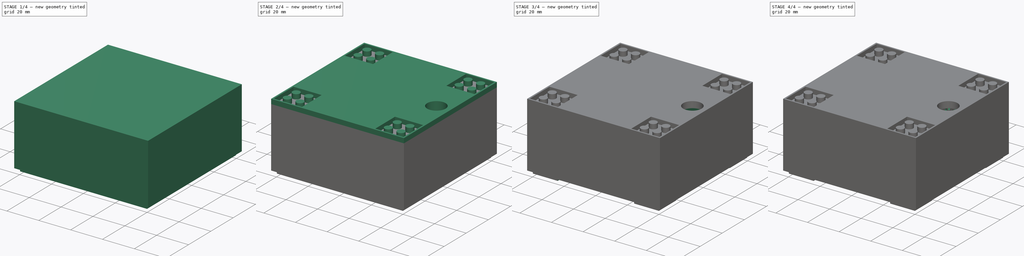
[diagram: build sequence overview — one tinted view per stage of 4, left to right]
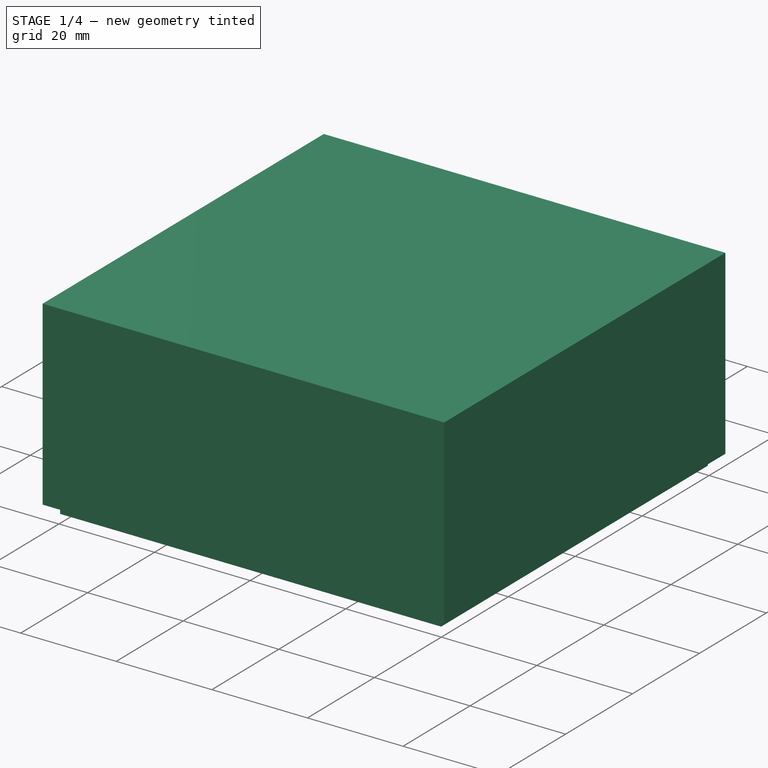
[diagram: stage 1 of 4 — iso view after this stage's code; geometry added in this stage tinted green]
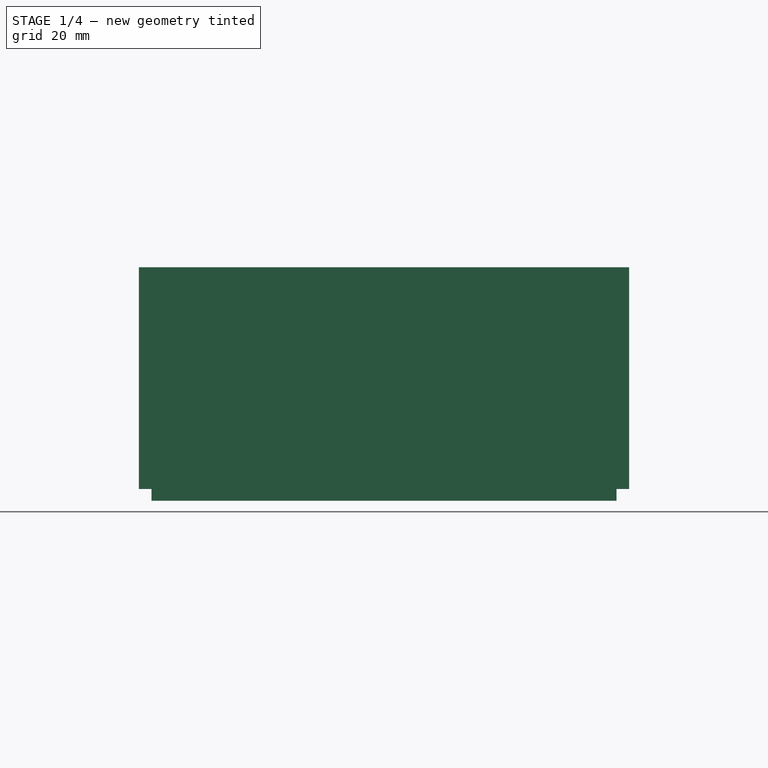
[diagram: stage 1 of 4 — front view after this stage's code; geometry added in this stage tinted green]
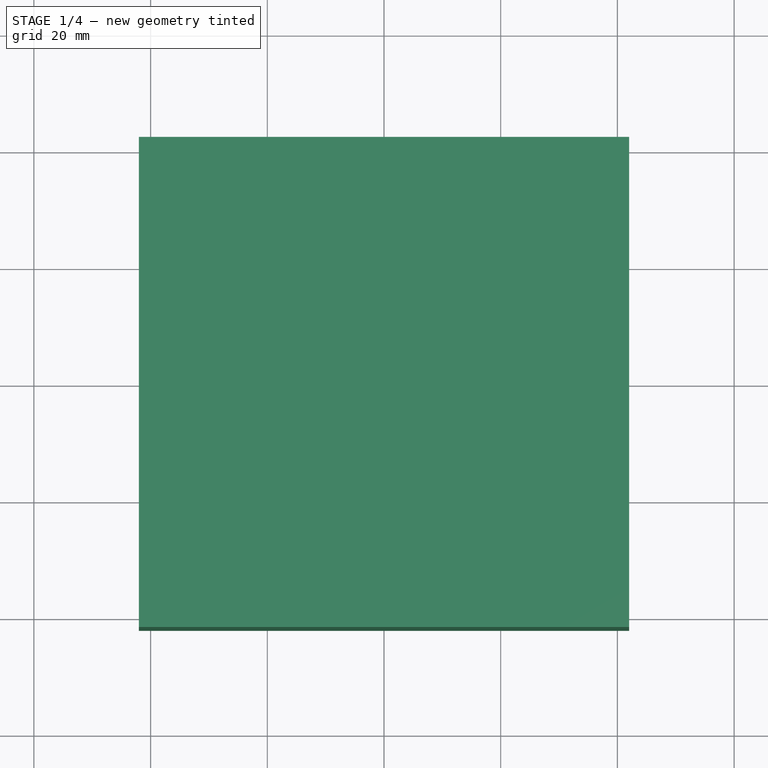
[diagram: stage 1 of 4 — top view after this stage's code; geometry added in this stage tinted green]
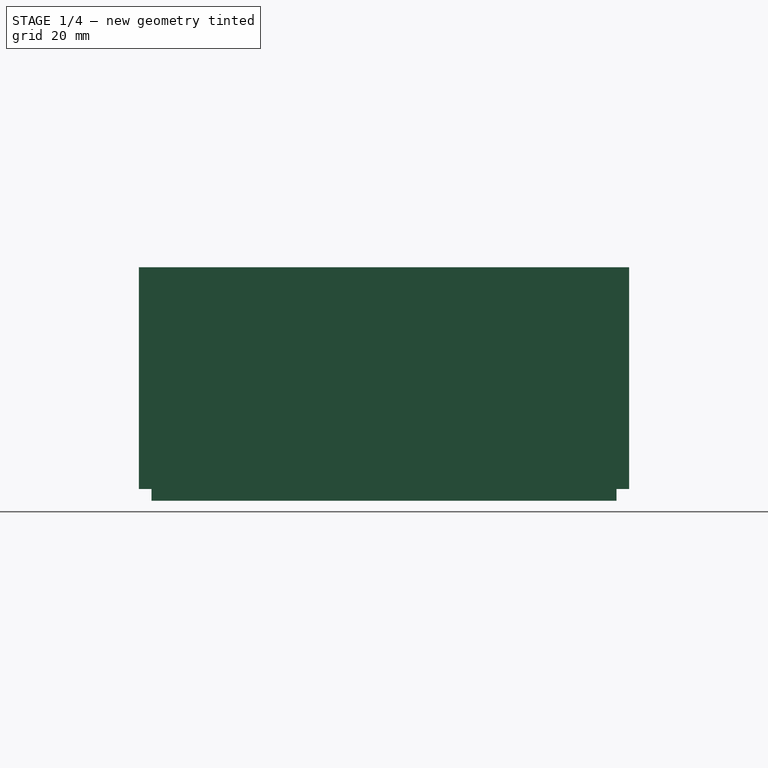
[diagram: stage 1 of 4 — right view after this stage's code; geometry added in this stage tinted green]
FCSTD DOCUMENT  (FreeCAD 0.15R4604 (Git))
Label: Turtles_Filter_Head_2
License: CC-BY 3.0
LicenseURL: http://creativecommons.org/licenses/by/3.0/
objects: Sketcher::SketchObject×11, PartDesign::Pocket×7, PartDesign::Pad×4
note: 33 computed .brp shape members not serialized (recipe doc carries the construction recipe); baked Part::Feature solids carry a one-line shape summary decoded from their .brp

FEATURE [Sketcher::SketchObject] Sketch  label="Starting_Pad_Sketch"
  sketch-geometry (4):
    g0: LineSegment StartX=-42 StartY=42 StartZ=0 EndX=-42 EndY=-42 EndZ=0
    g1: LineSegment StartX=-42 StartY=-42 StartZ=0 EndX=42 EndY=-42 EndZ=0
    g2: LineSegment StartX=42 StartY=-42 StartZ=0 EndX=42 EndY=42 EndZ=0
    g3: LineSegment StartX=42 StartY=42 StartZ=0 EndX=-42 EndY=42 EndZ=0
  constraints (11):
    c: Coincident(g0,g1)
    c: Coincident(g1,g2)
    c: Coincident(g2,g3)
    c: Coincident(g3,g0)
    c: DistanceX(g3) = -84
    c: DistanceY(g2) = 84
    c: DistanceY(g0) = -84
    c: DistanceX(g1) = 84
    c: Vertical(g0)
    c: Horizontal(g1)
    c: Symmetric(g0,g2,g-1)
FEATURE [PartDesign::Pad] Pad  label="Starting_Pad"
  Length = 40
  Length2 = 20
  Sketch = -> Sketch
  Type = 0
FEATURE [Sketcher::SketchObject] Sketch024  label="Rim_Pocket_Sketch"
  Placement = pos=(0,0,0) rot=(1,0,0;3.14159rad)
  Support = -> Pad [Face5]
  sketch-geometry (8):
    g0: LineSegment StartX=-39.85 StartY=39.85 StartZ=0 EndX=39.85 EndY=39.85 EndZ=0
    g1: LineSegment StartX=39.85 StartY=39.85 StartZ=0 EndX=39.85 EndY=-39.85 EndZ=0
    g2: LineSegment StartX=39.85 StartY=-39.85 StartZ=0 EndX=-39.85 EndY=-39.85 EndZ=0
    g3: LineSegment StartX=-39.85 StartY=-39.85 StartZ=0 EndX=-39.85 EndY=39.85 EndZ=0
    g4: LineSegment StartX=-42 StartY=42 StartZ=0 EndX=42 EndY=42 EndZ=0
    g5: LineSegment StartX=42 StartY=42 StartZ=0 EndX=42 EndY=-42 EndZ=0
    g6: LineSegment StartX=42 StartY=-42 StartZ=0 EndX=-42 EndY=-42 EndZ=0
    g7: LineSegment StartX=-42 StartY=-42 StartZ=0 EndX=-42 EndY=42 EndZ=0
  constraints (24):
    c: Coincident(g0,g1)
    c: Coincident(g1,g2)
    c: Coincident(g2,g3)
    c: Coincident(g3,g0)
    c: Horizontal(g0)
    c: Horizontal(g2)
    c: Vertical(g1)
    c: Vertical(g3)
    c: DistanceX(g-1,g0) = -39.85
    c: DistanceY(g-1,g0) = 39.85
    c: DistanceX(g-1,g0) = 39.85
    c: DistanceY(g-1,g2) = -39.85
    c: Coincident(g4,g5)
    c: Coincident(g5,g6)
    c: Coincident(g6,g7)
    c: Coincident(g7,g4)
    c: Horizontal(g4)
    c: Horizontal(g6)
    c: Vertical(g5)
    c: Vertical(g7)
    c: DistanceX(g-1,g4) = -42
    c: DistanceX(g-1,g4) = 42
    c: DistanceY(g-1,g6) = -42
    c: DistanceY(g-1,g4) = 42
FEATURE [PartDesign::Pocket] Pocket  label="Rim_Pocket"
  Length = 2
  Sketch = -> Sketch024
  Type = 0
FEATURE [Sketcher::SketchObject] Sketch016  label="Lego_Female_Pocket_Sketch"
  Placement = pos=(0,0,0) rot=(1,0,0;3.14159rad)
  Support = -> Pocket [Face11]
  sketch-geometry (20):
    g0: LineSegment StartX=-38.65 StartY=38.65 StartZ=0 EndX=-25.25 EndY=38.65 EndZ=0
    g1: LineSegment StartX=-25.25 StartY=38.65 StartZ=0 EndX=-25.25 EndY=25.25 EndZ=0
    g2: LineSegment StartX=-25.25 StartY=25.25 StartZ=0 EndX=-38.65 EndY=25.25 EndZ=0
    g3: LineSegment StartX=-38.65 StartY=25.25 StartZ=0 EndX=-38.65 EndY=38.65 EndZ=0
    g4: Circle CenterX=-31.95 CenterY=31.95 CenterZ=0 NormalX=0 NormalY=0 NormalZ=1 Radius=3.25
    g5: LineSegment StartX=25.25 StartY=38.65 StartZ=0 EndX=38.65 EndY=38.65 EndZ=0
    g6: LineSegment StartX=38.65 StartY=38.65 StartZ=0 EndX=38.65 EndY=25.25 EndZ=0
    g7: LineSegment StartX=38.65 StartY=25.25 StartZ=0 EndX=25.25 EndY=25.25 EndZ=0
    g8: LineSegment StartX=25.25 StartY=25.25 StartZ=0 EndX=25.25 EndY=38.65 EndZ=0
    g9: Circle CenterX=31.95 CenterY=31.95 CenterZ=0 NormalX=0 NormalY=0 NormalZ=1 Radius=3.25
    g10: LineSegment StartX=-38.65 StartY=-38.65 StartZ=0 EndX=-25.25 EndY=-38.65 EndZ=0
    g11: LineSegment StartX=-25.25 StartY=-38.65 StartZ=0 EndX=-25.25 EndY=-25.25 EndZ=0
    g12: LineSegment StartX=-25.25 StartY=-25.25 StartZ=0 EndX=-38.65 EndY=-25.25 EndZ=0
    g13: LineSegment StartX=-38.65 StartY=-25.25 StartZ=0 EndX=-38.65 EndY=-38.65 EndZ=0
    g14: Circle CenterX=-31.95 CenterY=-31.95 CenterZ=0 NormalX=0 NormalY=0 NormalZ=1 Radius=3.25
    g15: LineSegment StartX=25.25 StartY=-25.25 StartZ=0 EndX=38.65 EndY=-25.25 EndZ=0
    g16: LineSegment StartX=38.65 StartY=-25.25 StartZ=0 EndX=38.65 EndY=-38.65 EndZ=0
    g17: LineSegment StartX=38.65 StartY=-38.65 StartZ=0 EndX=25.25 EndY=-38.65 EndZ=0
    g18: LineSegment StartX=25.25 StartY=-38.65 StartZ=0 EndX=25.25 EndY=-25.25 EndZ=0
    g19: Circle CenterX=31.95 CenterY=-31.95 CenterZ=0 NormalX=0 NormalY=0 NormalZ=1 Radius=3.25
  constraints (60):
    c: Vertical(g3)
    c: Horizontal(g0)
    c: Vertical(g1)
    c: Horizontal(g2)
    c: Coincident(g0,g3)
    c: Coincident(g3,g2)
    c: Coincident(g2,g1)
    c: Coincident(g1,g0)
    c: DistanceX(g0) = 13.4
    c: DistanceY(g3) = 13.4
    c: DistanceX(g-1,g1) = -25.25
    c: DistanceY(g-1,g1) = 25.25
    c: Radius(g4) = 3.25
    c: DistanceX(g-1,g4) = -31.95
    c: DistanceY(g-1,g4) = 31.95
    c: Coincident(g10,g11)
    c: Coincident(g11,g12)
    c: Coincident(g12,g13)
    c: Coincident(g13,g10)
    c: Horizontal(g10)
    c: Horizontal(g12)
    c: Vertical(g11)
    c: Vertical(g13)
    c: Coincident(g15,g16)
    c: Coincident(g16,g17)
    c: Coincident(g17,g18)
    c: Coincident(g18,g15)
    c: Horizontal(g15)
    c: Horizontal(g17)
    c: Vertical(g16)
    c: Vertical(g18)
    c: Vertical(g8)
    c: Vertical(g6)
    c: Horizontal(g5)
    c: Horizontal(g7)
    c: DistanceX(g-1,g14) = -31.95
    c: DistanceY(g-1,g14) = -31.95
    c: DistanceX(g10) = 13.4
    c: DistanceY(g13) = -13.4
    c: DistanceX(g-1,g11) = -25.25
    c: DistanceY(g-1,g11) = -25.25
    c: DistanceY(g16) = -13.4
    c: DistanceX(g17) = -13.4
    c: DistanceX(g5) = 13.4
    c: DistanceY(g6) = -13.4
    c: DistanceX(g-1,g19) = 31.95
    c: DistanceY(g-1,g19) = -31.95
    c: DistanceX(g-1,g15) = 25.25
    c: DistanceY(g-1,g15) = -25.25
    c: DistanceX(g-1,g9) = 31.95
    c: DistanceY(g-1,g9) = 31.95
    c: DistanceX(g-1,g7) = 25.25
    c: DistanceY(g-1,g7) = 25.25
    c: Radius(g14) = 3.25
    c: Radius(g19) = 3.25
    c: Radius(g9) = 3.25
    c: Coincident(g8,g5)
    c: Coincident(g7,g6)
    c: Coincident(g5,g6)
    c: Coincident(g8,g7)
FEATURE [PartDesign::Pocket] Pocket001  label="Lego_Female_Pocket"
  Length = 5
  Sketch = -> Sketch016
  Type = 0
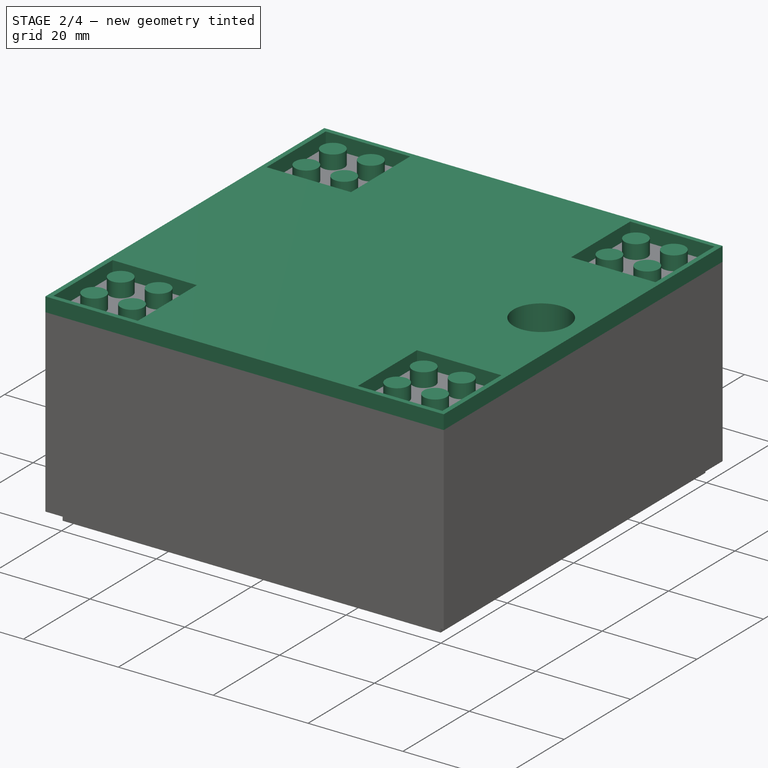
[diagram: stage 2 of 4 — iso view after this stage's code; geometry added in this stage tinted green]
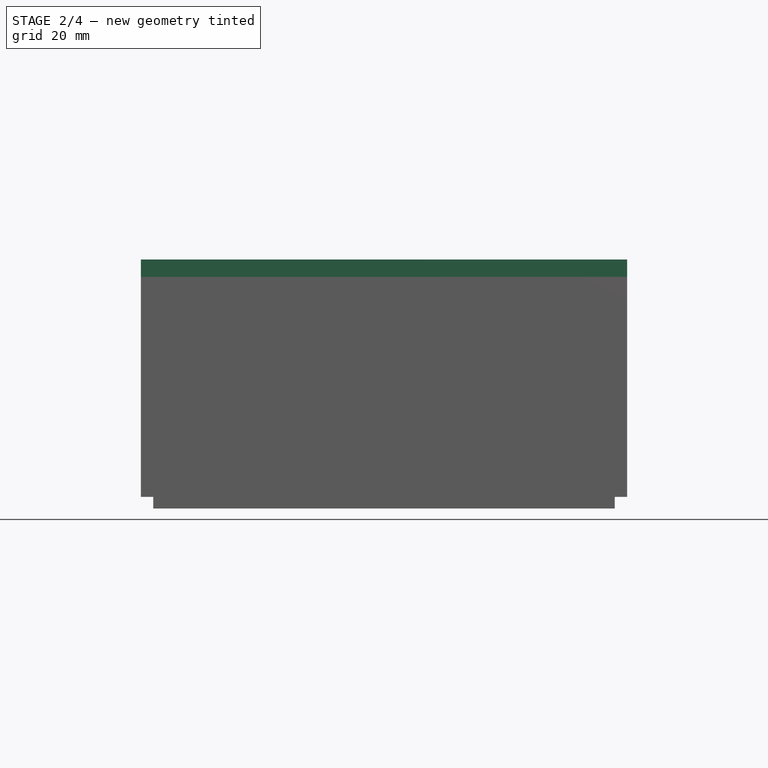
[diagram: stage 2 of 4 — front view after this stage's code; geometry added in this stage tinted green]
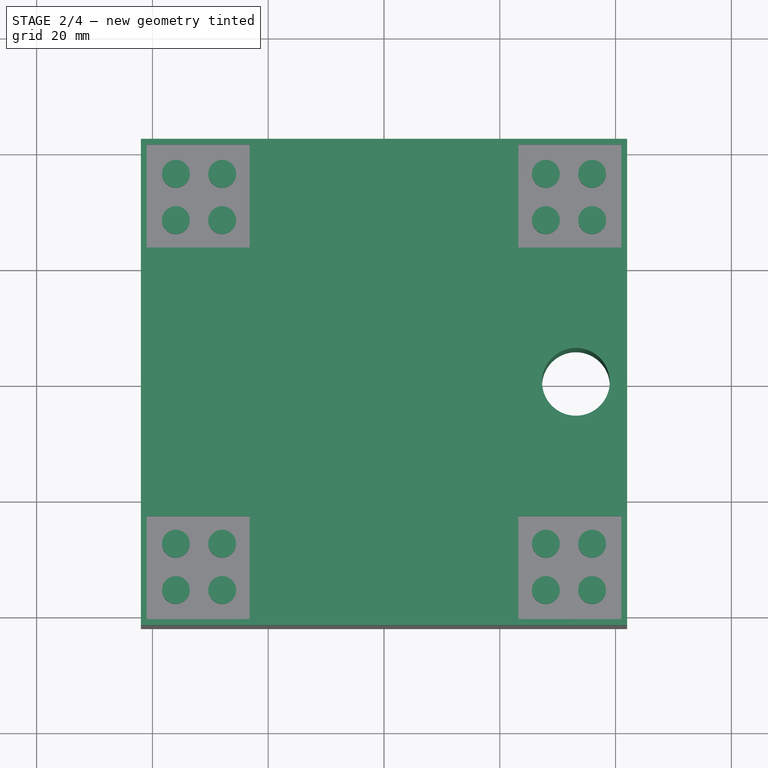
[diagram: stage 2 of 4 — top view after this stage's code; geometry added in this stage tinted green]
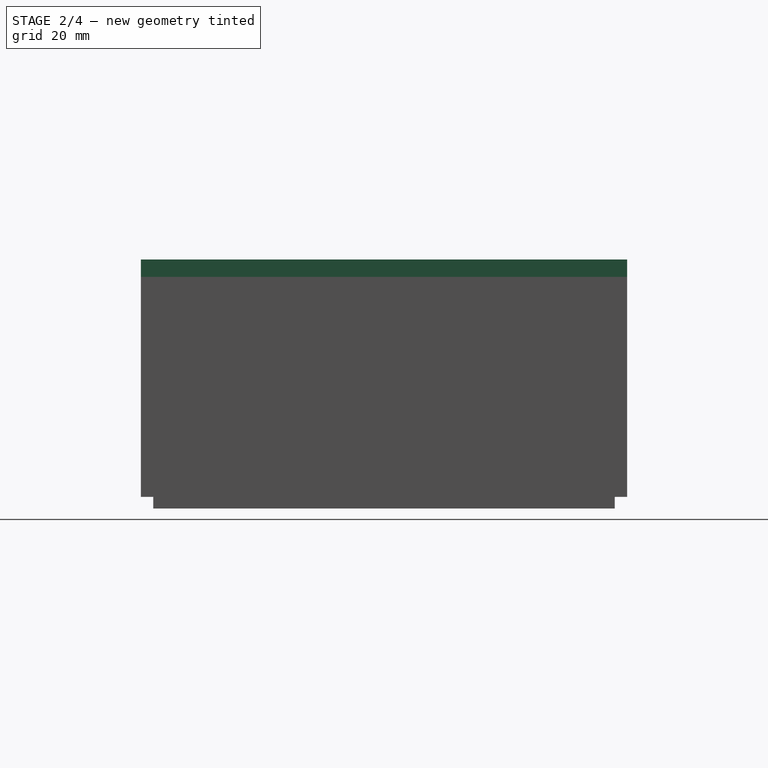
[diagram: stage 2 of 4 — right view after this stage's code; geometry added in this stage tinted green]
FEATURE [Sketcher::SketchObject] Sketch017  label="Lego_Male_Pad_Sketch"
  Placement = pos=(0,0,40) rot=(0,0,1;0rad)
  Support = -> Pocket001 [Face4]
  sketch-geometry (16):
    g0: Circle CenterX=-35.95 CenterY=-35.95 CenterZ=0 NormalX=0 NormalY=0 NormalZ=1 Radius=2.4
    g1: Circle CenterX=35.95 CenterY=35.95 CenterZ=0 NormalX=0 NormalY=0 NormalZ=1 Radius=2.4
    g2: Circle CenterX=35.95 CenterY=-35.95 CenterZ=0 NormalX=0 NormalY=0 NormalZ=1 Radius=2.4
    g3: Circle CenterX=-35.95 CenterY=35.95 CenterZ=0 NormalX=0 NormalY=0 NormalZ=1 Radius=2.4
    g4: Circle CenterX=-27.95 CenterY=35.95 CenterZ=0 NormalX=0 NormalY=0 NormalZ=1 Radius=2.4
    g5: Circle CenterX=-27.95 CenterY=27.95 CenterZ=0 NormalX=0 NormalY=0 NormalZ=1 Radius=2.4
    g6: Circle CenterX=27.95 CenterY=27.95 CenterZ=0 NormalX=0 NormalY=0 NormalZ=1 Radius=2.4
    g7: Circle CenterX=27.95 CenterY=35.95 CenterZ=0 NormalX=0 NormalY=0 NormalZ=1 Radius=2.4
    g8: Circle CenterX=-35.95 CenterY=27.95 CenterZ=0 NormalX=0 NormalY=0 NormalZ=1 Radius=2.4
    g9: Circle CenterX=35.95 CenterY=27.95 CenterZ=0 NormalX=0 NormalY=0 NormalZ=1 Radius=2.4
    g10: Circle CenterX=27.95 CenterY=-27.95 CenterZ=0 NormalX=0 NormalY=0 NormalZ=1 Radius=2.4
    g11: Circle CenterX=27.95 CenterY=-35.95 CenterZ=0 NormalX=0 NormalY=0 NormalZ=1 Radius=2.4
    g12: Circle CenterX=35.95 CenterY=-27.95 CenterZ=0 NormalX=0 NormalY=0 NormalZ=1 Radius=2.4
    g13: Circle CenterX=-27.95 CenterY=-27.95 CenterZ=0 NormalX=0 NormalY=0 NormalZ=1 Radius=2.4
    g14: Circle CenterX=-27.95 CenterY=-35.95 CenterZ=0 NormalX=0 NormalY=0 NormalZ=1 Radius=2.4
    g15: Circle CenterX=-35.95 CenterY=-27.95 CenterZ=0 NormalX=0 NormalY=0 NormalZ=1 Radius=2.4
  constraints (48):
    c: Radius(g4) = 2.4
    c: Equal(g4,g3)
    c: Equal(g4,g8)
    c: Equal(g4,g5)
    c: Equal(g4,g6)
    c: Equal(g4,g7)
    c: Equal(g4,g1)
    c: Equal(g4,g9)
    c: Equal(g4,g13)
    c: Equal(g4,g14)
    c: Equal(g4,g0)
    c: Equal(g4,g15)
    c: Equal(g4,g11)
    c: Equal(g4,g2)
    c: Equal(g4,g12)
    c: Equal(g4,g10)
    c: DistanceX(g-1,g5) = -27.95
    c: DistanceX(g-1,g4) = -27.95
    c: DistanceX(g-1,g3) = -35.95
    c: DistanceX(g-1,g8) = -35.95
    c: DistanceY(g-1,g5) = 27.95
    c: DistanceY(g-1,g8) = 27.95
    c: DistanceY(g-1,g4) = 35.95
    c: DistanceY(g-1,g3) = 35.95
    c: DistanceY(g-1,g13) = -27.95
    c: DistanceY(g-1,g15) = -27.95
    c: DistanceX(g-1,g13) = -27.95
    c: DistanceX(g-1,g14) = -27.95
    c: DistanceX(g-1,g0) = -35.95
    c: DistanceX(g-1,g15) = -35.95
    c: DistanceX(g-1,g11) = 27.95
    c: DistanceX(g-1,g10) = 27.95
    c: DistanceX(g-1,g12) = 35.95
    c: DistanceX(g-1,g2) = 35.95
    c: DistanceY(g-1,g12) = -27.95
    c: DistanceY(g-1,g10) = -27.95
    c: DistanceY(g-1,g2) = -35.95
    c: DistanceY(g-1,g11) = -35.95
    c: DistanceX(g-1,g6) = 27.95
    c: DistanceX(g-1,g7) = 27.95
    c: DistanceX(g-1,g9) = 35.95
    c: DistanceX(g-1,g1) = 35.95
    c: DistanceY(g-1,g9) = 27.95
    c: DistanceY(g-1,g6) = 27.95
    c: DistanceY(g-1,g1) = 35.95
    c: DistanceY(g-1,g7) = 35.95
    c: DistanceY(g-1,g14) = -35.95
    c: DistanceY(g-1,g0) = -35.95
FEATURE [PartDesign::Pad] Pad001  label="Lego_Male_Pad"
  Length = 3
  Length2 = 100
  Sketch = -> Sketch017
  Type = 0
FEATURE [Sketcher::SketchObject] Sketch018  label="Top_Flush_Pad_Sketch"
  Placement = pos=(0,0,40) rot=(0,0,1;0rad)
  Support = -> Pad001 [Face4]
  sketch-geometry (20):
    g0: LineSegment StartX=-42 StartY=42 StartZ=0 EndX=-42 EndY=-42 EndZ=0
    g1: LineSegment StartX=-42 StartY=-42 StartZ=0 EndX=42 EndY=-42 EndZ=0
    g2: LineSegment StartX=42 StartY=-42 StartZ=0 EndX=42 EndY=42 EndZ=0
    g3: LineSegment StartX=42 StartY=42 StartZ=0 EndX=-42 EndY=42 EndZ=0
    g4: LineSegment StartX=-41 StartY=41 StartZ=0 EndX=-23.2 EndY=41 EndZ=0
    g5: LineSegment StartX=-23.2 StartY=41 StartZ=0 EndX=-23.2 EndY=23.2 EndZ=0
    g6: LineSegment StartX=-23.2 StartY=23.2 StartZ=0 EndX=-41 EndY=23.2 EndZ=0
    g7: LineSegment StartX=-41 StartY=23.2 StartZ=0 EndX=-41 EndY=41 EndZ=0
    g8: LineSegment StartX=-23.2 StartY=-23.2 StartZ=0 EndX=-41 EndY=-23.2 EndZ=0
    g9: LineSegment StartX=-41 StartY=-23.2 StartZ=0 EndX=-41 EndY=-41 EndZ=0
    g10: LineSegment StartX=-41 StartY=-41 StartZ=0 EndX=-23.2 EndY=-41 EndZ=0
    g11: LineSegment StartX=-23.2 StartY=-41 StartZ=0 EndX=-23.2 EndY=-23.2 EndZ=0
    g12: LineSegment StartX=41 StartY=23.2 StartZ=0 EndX=23.2 EndY=23.2 EndZ=0
    g13: LineSegment StartX=23.2 StartY=23.2 StartZ=0 EndX=23.2 EndY=41 EndZ=0
    g14: LineSegment StartX=23.2 StartY=41 StartZ=0 EndX=41 EndY=41 EndZ=0
    g15: LineSegment StartX=41 StartY=41 StartZ=0 EndX=41 EndY=23.2 EndZ=0
    g16: LineSegment StartX=23.2 StartY=-23.2 StartZ=0 EndX=41 EndY=-23.2 EndZ=0
    g17: LineSegment StartX=41 StartY=-23.2 StartZ=0 EndX=41 EndY=-41 EndZ=0
    g18: LineSegment StartX=41 StartY=-41 StartZ=0 EndX=23.2 EndY=-41 EndZ=0
    g19: LineSegment StartX=23.2 StartY=-41 StartZ=0 EndX=23.2 EndY=-23.2 EndZ=0
  constraints (61):
    c: DistanceX(g3) = -84
    c: DistanceY(g0) = -84
    c: DistanceX(g1) = 84
    c: DistanceY(g2) = 84
    c: Horizontal(g3)
    c: Vertical(g0)
    c: Horizontal(g1)
    c: Coincident(g3,g0)
    c: Coincident(g3,g2)
    c: Coincident(g0,g1)
    c: Vertical(g2)
    c: DistanceX(g-1,g0) = -42
    c: DistanceY(g-1,g0) = -42
    c: Coincident(g4,g5)
    c: Coincident(g5,g6)
    c: Coincident(g6,g7)
    c: Coincident(g7,g4)
    c: Horizontal(g4)
    c: Horizontal(g6)
    c: Vertical(g5)
    c: Vertical(g7)
    c: DistanceX(g-1,g5) = -23.2
    c: DistanceY(g-1,g5) = 23.2
    c: DistanceY(g5) = -17.8
    c: DistanceX(g6) = -17.8
    c: Coincident(g8,g9)
    c: Coincident(g9,g10)
    c: Coincident(g10,g11)
    c: Coincident(g11,g8)
    c: Horizontal(g8)
    c: Horizontal(g10)
    c: Vertical(g9)
    c: Vertical(g11)
    c: DistanceY(g-1,g8) = -23.2
    c: DistanceX(g-1,g8) = -23.2
    c: DistanceX(g8) = -17.8
    c: DistanceY(g11) = 17.8
    c: Coincident(g12,g13)
    c: Coincident(g13,g14)
    c: Coincident(g14,g15)
    c: Coincident(g15,g12)
    c: Horizontal(g12)
    c: Horizontal(g14)
    c: Vertical(g13)
    c: Vertical(g15)
    c: DistanceX(g-1,g12) = 23.2
    c: DistanceY(g-1,g12) = 23.2
    c: DistanceY(g13) = 17.8
    c: DistanceX(g12) = -17.8
    c: Coincident(g16,g17)
    c: Coincident(g17,g18)
    c: Coincident(g18,g19)
    c: Coincident(g19,g16)
    c: Horizontal(g16)
    c: Horizontal(g18)
    c: Vertical(g17)
    c: Vertical(g19)
    c: DistanceY(g-1,g16) = -23.2
    c: DistanceX(g-1,g18) = 23.2
    c: DistanceY(g19) = 17.8
    c: DistanceX(g16) = 17.8
FEATURE [PartDesign::Pad] Pad002  label="Top_Flush_Pad"
  Length = 3
  Length2 = 100
  Sketch = -> Sketch018
  Type = 0
FEATURE [Sketcher::SketchObject] Sketch019  label="Pump_Conn_Pocket_Sketch"
  Placement = pos=(0,0,43) rot=(0,0,1;0rad)
  Support = -> Pad002 [Face36]
  sketch-geometry (1):
    g0: Circle CenterX=33.15 CenterY=0 CenterZ=0 NormalX=0 NormalY=0 NormalZ=1 Radius=5.85
  constraints (3):
    c: Radius(g0) = 5.85
    c: DistanceY(g-1,g0) = 0
    c: DistanceX(g-1,g0) = 33.15
FEATURE [PartDesign::Pocket] Pocket002  label="Pump_Conn_Pocket"
  Length = 5
  Sketch = -> Sketch019
  Type = 1
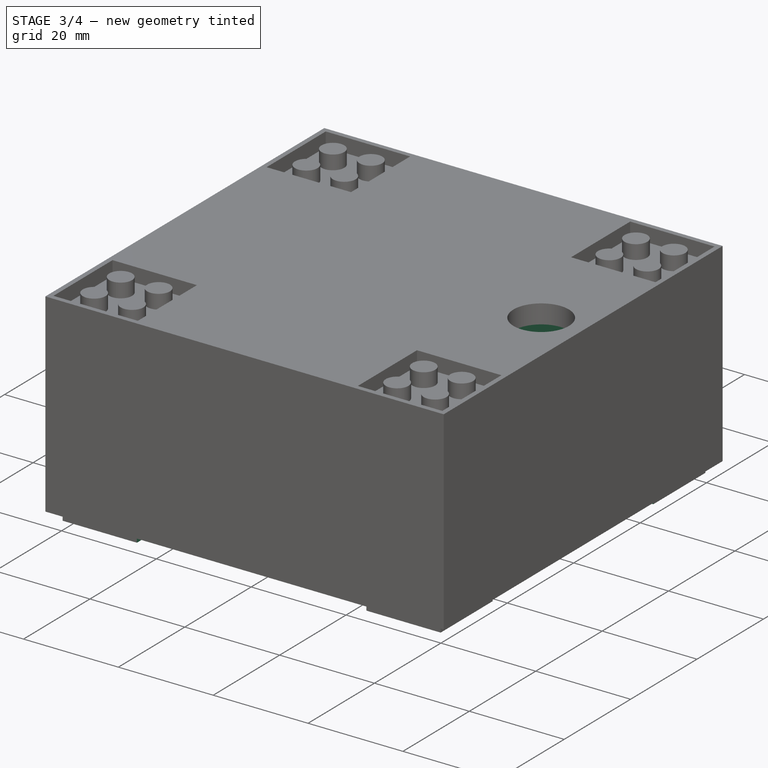
[diagram: stage 3 of 4 — iso view after this stage's code; geometry added in this stage tinted green]
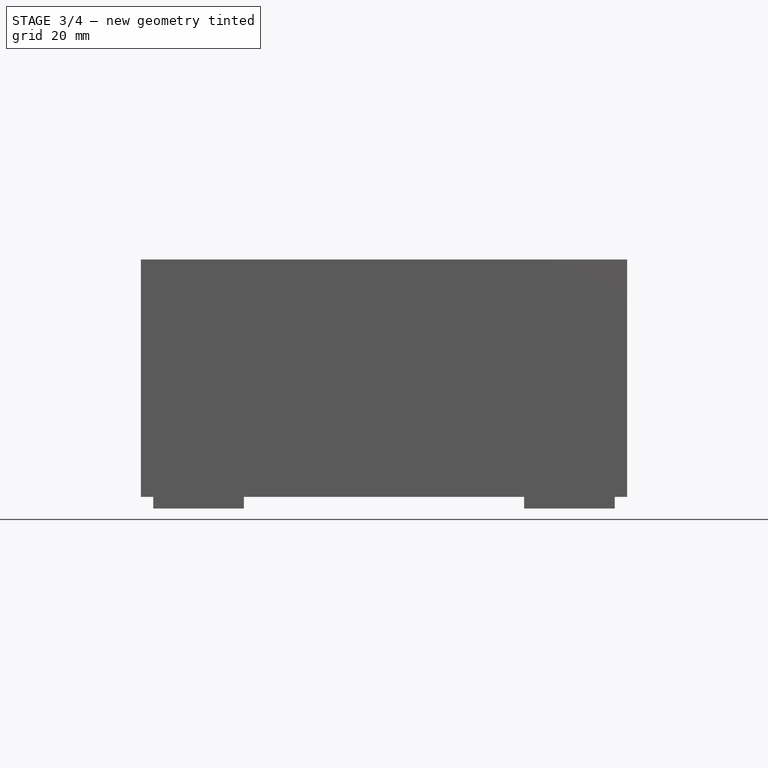
[diagram: stage 3 of 4 — front view after this stage's code; geometry added in this stage tinted green]
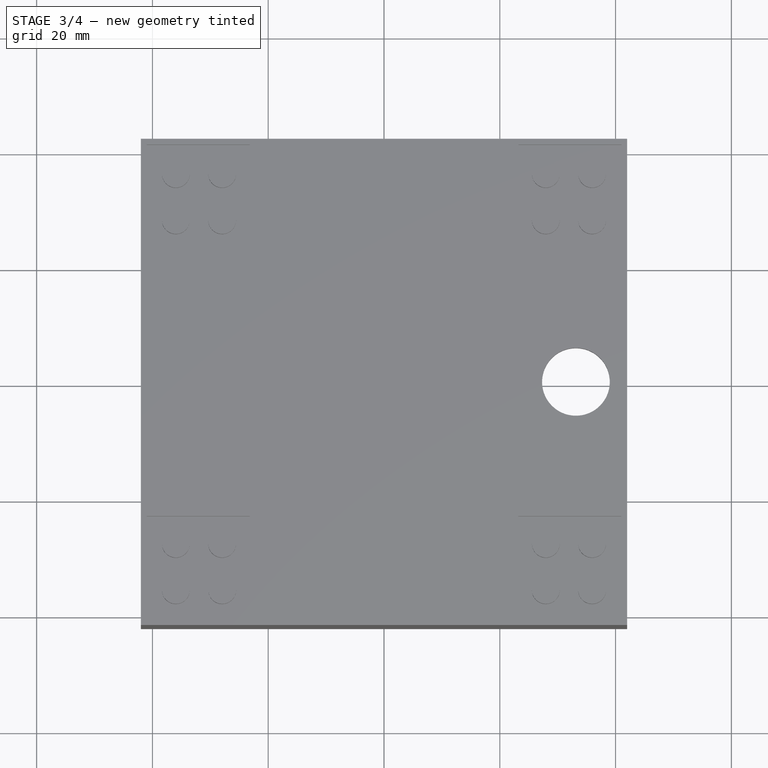
[diagram: stage 3 of 4 — top view after this stage's code; geometry added in this stage tinted green]
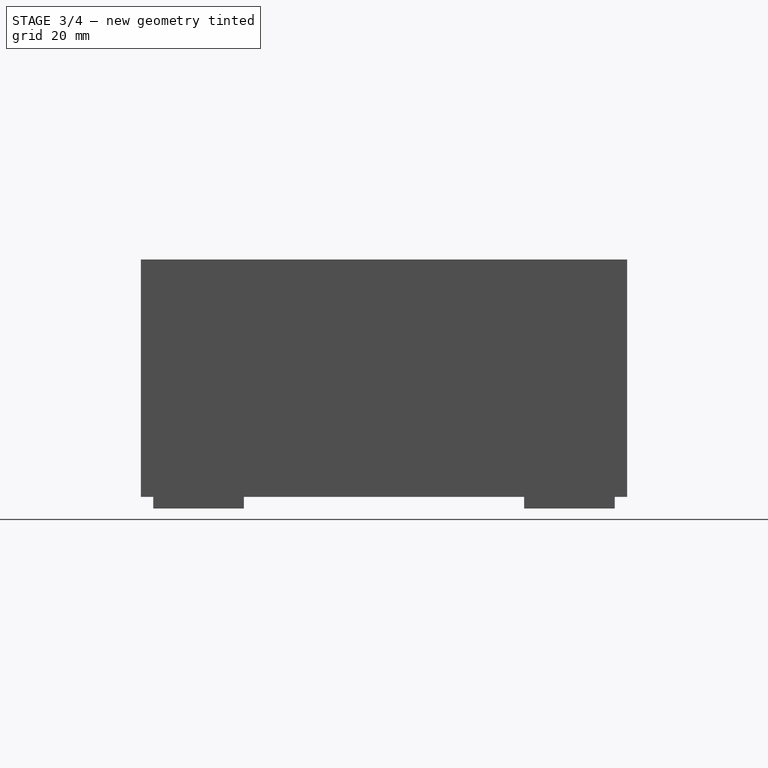
[diagram: stage 3 of 4 — right view after this stage's code; geometry added in this stage tinted green]
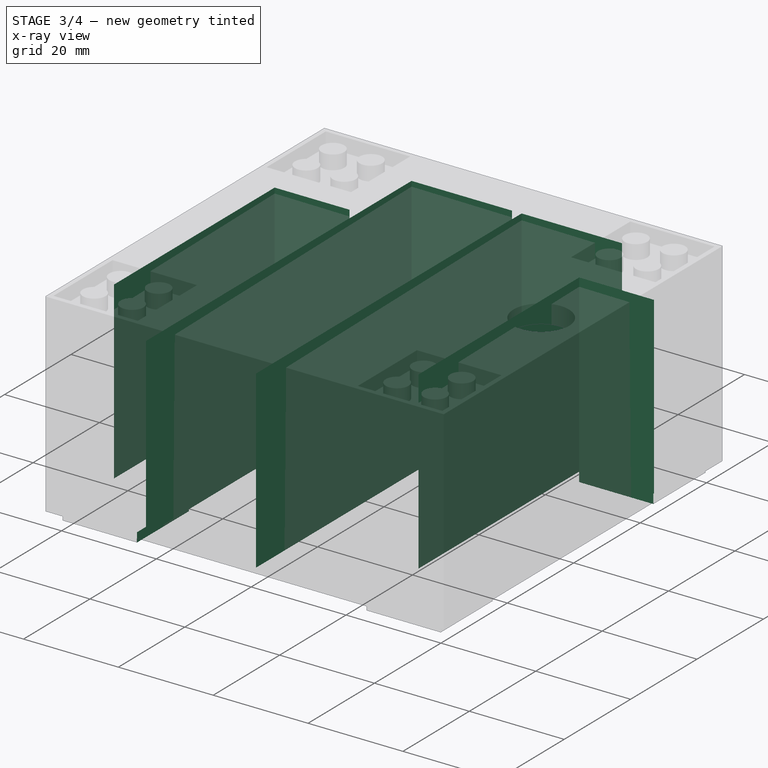
[diagram: stage 3 of 4 — x-ray composite at the iso view; earlier geometry ghosted, this stage's added geometry solid]
FEATURE [Sketcher::SketchObject] Sketch009  label="Bottom_Basket_Pocket_Sketch"
  Placement = pos=(0,0,0) rot=(1,0,0;3.14159rad)
  Support = -> Pocket002 [Face11]
  sketch-geometry (12):
    g0: LineSegment StartX=-24.2 StartY=40 StartZ=0 EndX=-24.2 EndY=24.2 EndZ=0
    g1: LineSegment StartX=-24.2 StartY=24.2 StartZ=0 EndX=-40 EndY=24.2 EndZ=0
    g2: LineSegment StartX=-40 StartY=24.2 StartZ=0 EndX=-40 EndY=-24.2 EndZ=0
    g3: LineSegment StartX=-40 StartY=-24.2 StartZ=0 EndX=-24.2 EndY=-24.2 EndZ=0
    g4: LineSegment StartX=-24.2 StartY=-24.2 StartZ=0 EndX=-24.2 EndY=-40 EndZ=0
    g5: LineSegment StartX=-24.2 StartY=-40 StartZ=0 EndX=24.2 EndY=-40 EndZ=0
    g6: LineSegment StartX=24.2 StartY=-40 StartZ=0 EndX=24.2 EndY=-24.2 EndZ=0
    g7: LineSegment StartX=24.2 StartY=-24.2 StartZ=0 EndX=40 EndY=-24.2 EndZ=0
    g8: LineSegment StartX=40 StartY=-24.2 StartZ=0 EndX=40 EndY=24.2 EndZ=0
    g9: LineSegment StartX=40 StartY=24.2 StartZ=0 EndX=24.2 EndY=24.2 EndZ=0
    g10: LineSegment StartX=24.2 StartY=24.2 StartZ=0 EndX=24.2 EndY=40 EndZ=0
    g11: LineSegment StartX=24.2 StartY=40 StartZ=0 EndX=-24.2 EndY=40 EndZ=0
  constraints (36):
    c: Vertical(g0)
    c: Coincident(g0,g1)
    c: Horizontal(g1)
    c: Coincident(g1,g2)
    c: Vertical(g2)
    c: Coincident(g2,g3)
    c: Horizontal(g3)
    c: Coincident(g3,g4)
    c: Vertical(g4)
    c: Coincident(g4,g5)
    c: Horizontal(g5)
    c: Coincident(g5,g6)
    c: Vertical(g6)
    c: Coincident(g6,g7)
    c: Horizontal(g7)
    c: Coincident(g7,g8)
    c: Vertical(g8)
    c: Coincident(g8,g9)
    c: Horizontal(g9)
    c: Coincident(g9,g10)
    c: Vertical(g10)
    c: Coincident(g10,g11)
    c: Horizontal(g11)
    c: Coincident(g11,g0)
    c: DistanceX(g-1,g0) = -24.2
    c: DistanceX(g-1,g10) = 24.2
    c: DistanceY(g-1,g1) = 24.2
    c: DistanceY(g-1,g2) = -24.2
    c: DistanceX(g-1,g4) = -24.2
    c: DistanceX(g-1,g5) = 24.2
    c: DistanceY(g-1,g7) = -24.2
    c: DistanceY(g-1,g8) = 24.2
    c: DistanceY(g0) = -15.8
    c: DistanceX(g1) = -15.8
    c: DistanceY(g4) = -15.8
    c: DistanceX(g7) = 15.8
FEATURE [PartDesign::Pocket] Pocket003  label="Bottom_Basket_Pocket"
  Length = 39
  Sketch = -> Sketch009
  Type = 0
FEATURE [Sketcher::SketchObject] Sketch005  label="Filter_Walls_Pad_Sketch"
  Placement = pos=(0,0,39) rot=(1,0,0;3.14159rad)
  Support = -> Pocket003 [Face28]
  sketch-geometry (12):
    g0: LineSegment StartX=24.2 StartY=40 StartZ=0 EndX=22.2 EndY=40 EndZ=0
    g1: LineSegment StartX=22.2 StartY=40 StartZ=0 EndX=22.2 EndY=-40 EndZ=0
    g2: LineSegment StartX=22.2 StartY=-40 StartZ=0 EndX=24.2 EndY=-40 EndZ=0
    g3: LineSegment StartX=24.2 StartY=-40 StartZ=0 EndX=24.2 EndY=40 EndZ=0
    g4: LineSegment StartX=-1 StartY=40 StartZ=0 EndX=1 EndY=40 EndZ=0
    g5: LineSegment StartX=1 StartY=40 StartZ=0 EndX=1 EndY=-40 EndZ=0
    g6: LineSegment StartX=1 StartY=-40 StartZ=0 EndX=-1 EndY=-40 EndZ=0
    g7: LineSegment StartX=-1 StartY=-40 StartZ=0 EndX=-1 EndY=40 EndZ=0
    g8: LineSegment StartX=-22.2 StartY=40 StartZ=0 EndX=-24.2 EndY=40 EndZ=0
    g9: LineSegment StartX=-24.2 StartY=40 StartZ=0 EndX=-24.2 EndY=-40 EndZ=0
    g10: LineSegment StartX=-24.2 StartY=-40 StartZ=0 EndX=-22.2 EndY=-40 EndZ=0
    g11: LineSegment StartX=-22.2 StartY=-40 StartZ=0 EndX=-22.2 EndY=40 EndZ=0
  constraints (36):
    c: Coincident(g1,g0)
    c: Coincident(g1,g2)
    c: Coincident(g2,g3)
    c: Coincident(g3,g0)
    c: Horizontal(g2)
    c: Vertical(g3)
    c: Horizontal(g0)
    c: Vertical(g1)
    c: Coincident(g4,g5)
    c: Coincident(g5,g6)
    c: Coincident(g6,g7)
    c: Coincident(g7,g4)
    c: Horizontal(g4)
    c: Horizontal(g6)
    c: Vertical(g5)
    c: Vertical(g7)
    c: Coincident(g8,g9)
    c: Coincident(g9,g10)
    c: Coincident(g10,g11)
    c: Coincident(g11,g8)
    c: Horizontal(g8)
    c: Horizontal(g10)
    c: Vertical(g9)
    c: Vertical(g11)
    c: DistanceX(g-1,g9) = -24.2
    c: DistanceX(g-1,g10) = -22.2
    c: DistanceY(g-1,g10) = -40
    c: DistanceY(g-1,g8) = 40
    c: DistanceY(g-1,g4) = 40
    c: DistanceY(g-1,g6) = -40
    c: DistanceY(g-1,g0) = 40
    c: DistanceY(g-1,g2) = -40
    c: DistanceX(g-1,g2) = 24.2
    c: DistanceX(g-1,g1) = 22.2
    c: DistanceX(g-1,g4) = 1
    c: DistanceX(g-1,g4) = -1
FEATURE [PartDesign::Pad] Pad003  label="Filter_Walls_Pad"
  Length = 37
  Length2 = 100
  Sketch = -> Sketch005
  Type = 0
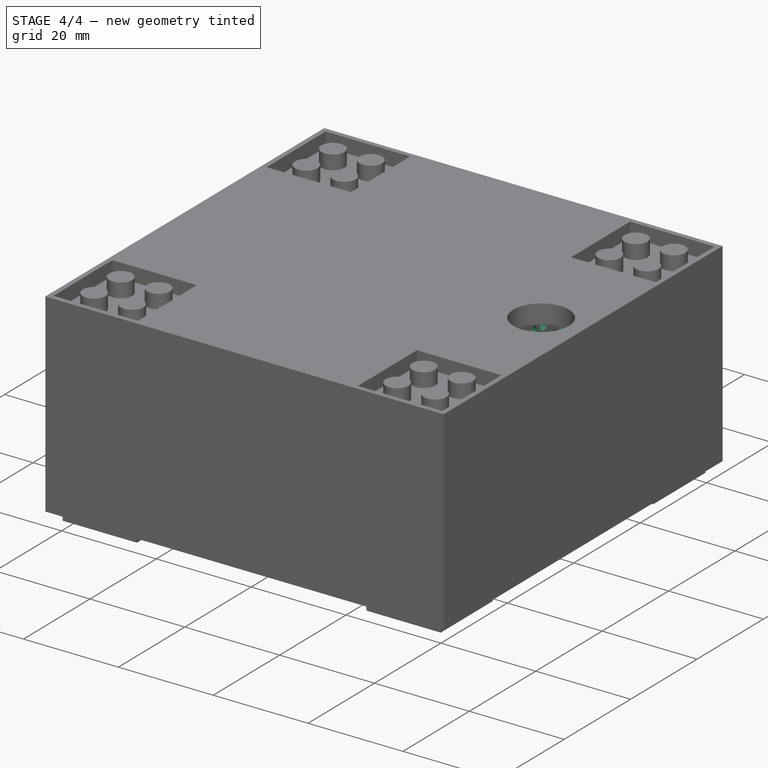
[diagram: stage 4 of 4 — iso view after this stage's code; geometry added in this stage tinted green]
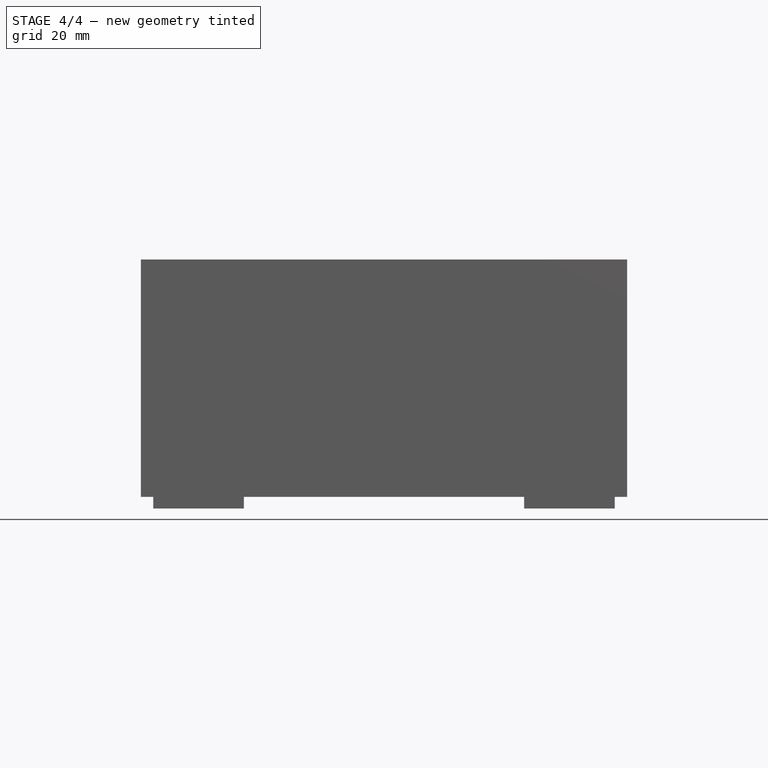
[diagram: stage 4 of 4 — front view after this stage's code; geometry added in this stage tinted green]
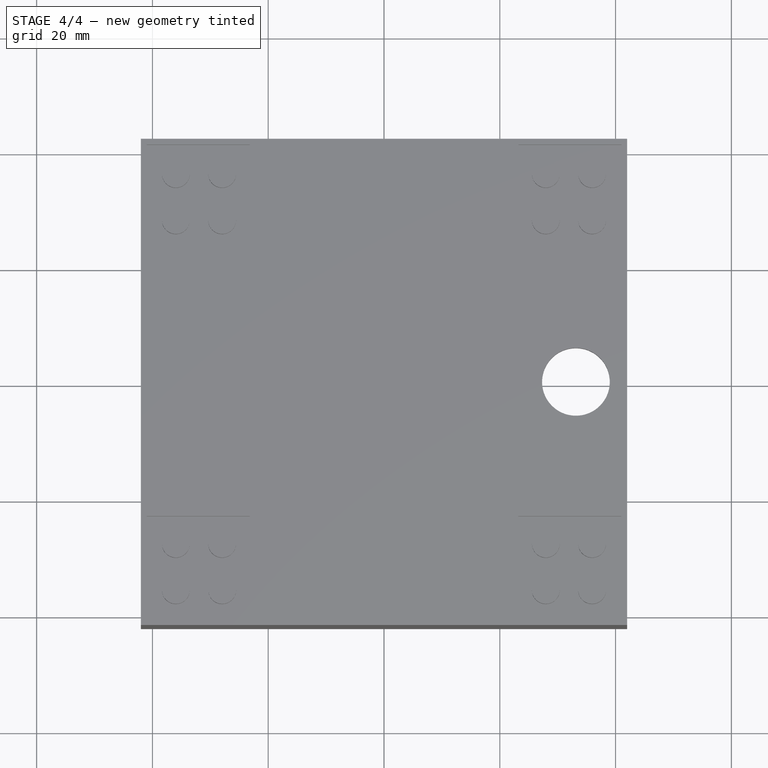
[diagram: stage 4 of 4 — top view after this stage's code; geometry added in this stage tinted green]
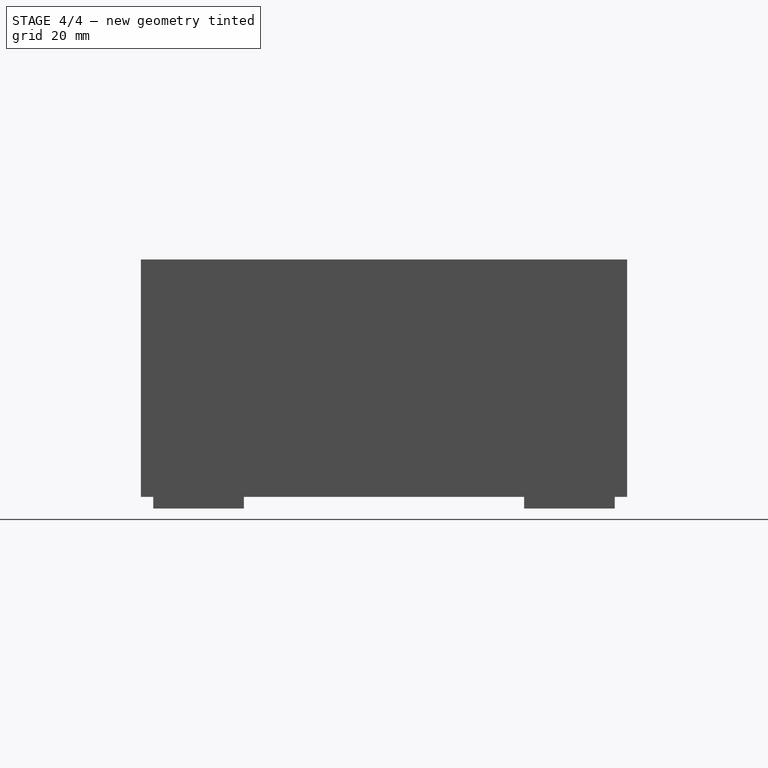
[diagram: stage 4 of 4 — right view after this stage's code; geometry added in this stage tinted green]
FEATURE [Sketcher::SketchObject] Sketch021
  Placement = pos=(-22.2,0,0) rot=(0.57735,0.57735,0.57735;2.0944rad)
  Support = -> Pad003 [Face88]
  sketch-geometry (62):
    g0: Circle CenterX=-22 CenterY=5 CenterZ=0 NormalX=0 NormalY=0 NormalZ=1 Radius=2
    g1: Circle CenterX=-17.1 CenterY=5 CenterZ=0 NormalX=0 NormalY=0 NormalZ=1 Radius=2
    g2: Circle CenterX=-12.2 CenterY=5 CenterZ=0 NormalX=0 NormalY=0 NormalZ=1 Radius=2
    g3: Circle CenterX=-7.3 CenterY=5 CenterZ=0 NormalX=0 NormalY=0 NormalZ=1 Radius=2
    g4: Circle CenterX=-2.4 CenterY=5 CenterZ=0 NormalX=0 NormalY=0 NormalZ=1 Radius=2
    g5: Circle CenterX=2.5 CenterY=5 CenterZ=0 NormalX=0 NormalY=0 NormalZ=1 Radius=2
    g6: Circle CenterX=7.4 CenterY=5 CenterZ=0 NormalX=0 NormalY=0 NormalZ=1 Radius=2
    g7: Circle CenterX=12.3 CenterY=5 CenterZ=0 NormalX=0 NormalY=0 NormalZ=1 Radius=2
    g8: Circle CenterX=17.2 CenterY=5 CenterZ=0 NormalX=0 NormalY=0 NormalZ=1 Radius=2
    g9: Circle CenterX=22.1 CenterY=5 CenterZ=0 NormalX=0 NormalY=0 NormalZ=1 Radius=2
    g10: Circle CenterX=-22 CenterY=10 CenterZ=0 NormalX=0 NormalY=0 NormalZ=1 Radius=2
    g11: Circle CenterX=-17.1 CenterY=10 CenterZ=0 NormalX=0 NormalY=0 NormalZ=1 Radius=2
    g12: Circle CenterX=-12.2 CenterY=10 CenterZ=0 NormalX=0 NormalY=0 NormalZ=1 Radius=2
    g13: Circle CenterX=-7.3 CenterY=10 CenterZ=0 NormalX=0 NormalY=0 NormalZ=1 Radius=2
    g14: Circle CenterX=-2.4 CenterY=10 CenterZ=0 NormalX=0 NormalY=0 NormalZ=1 Radius=2
    g15: Circle CenterX=2.5 CenterY=10 CenterZ=0 NormalX=0 NormalY=0 NormalZ=1 Radius=2
    g16: Circle CenterX=7.4 CenterY=10 CenterZ=0 NormalX=0 NormalY=0 NormalZ=1 Radius=2
    g17: Circle CenterX=12.3 CenterY=10 CenterZ=0 NormalX=0 NormalY=0 NormalZ=1 Radius=2
    g18: Circle CenterX=17.2 CenterY=10 CenterZ=0 NormalX=0 NormalY=0 NormalZ=1 Radius=2
    g19: Circle CenterX=22.1 CenterY=10 CenterZ=0 NormalX=0 NormalY=0 NormalZ=1 Radius=2
    g20: Circle CenterX=-22 CenterY=15 CenterZ=0 NormalX=0 NormalY=0 NormalZ=1 Radius=2
    g21: Circle CenterX=-17.1 CenterY=15 CenterZ=0 NormalX=0 NormalY=0 NormalZ=1 Radius=2
    g22: Circle CenterX=-12.2 CenterY=15 CenterZ=0 NormalX=0 NormalY=0 NormalZ=1 Radius=2
    g23: Circle CenterX=-7.3 CenterY=15 CenterZ=0 NormalX=0 NormalY=0 NormalZ=1 Radius=2
    g24: Circle CenterX=-2.4 CenterY=15 CenterZ=0 NormalX=0 NormalY=0 NormalZ=1 Radius=2
    g25: Circle CenterX=2.5 CenterY=15 CenterZ=0 NormalX=0 NormalY=0 NormalZ=1 Radius=2
    g26: Circle CenterX=7.4 CenterY=15 CenterZ=0 NormalX=0 NormalY=0 NormalZ=1 Radius=2
    g27: Circle CenterX=12.3 CenterY=15 CenterZ=0 NormalX=0 NormalY=0 NormalZ=1 Radius=2
    g28: Circle CenterX=17.2 CenterY=15 CenterZ=0 NormalX=0 NormalY=0 NormalZ=1 Radius=2
    g29: Circle CenterX=22.1 CenterY=15 CenterZ=0 NormalX=0 NormalY=0 NormalZ=1 Radius=2
    g30: Circle CenterX=-21.5 CenterY=20.25 CenterZ=0 NormalX=0 NormalY=0 NormalZ=1 Radius=2.25
    g31: Circle CenterX=-15.35 CenterY=20.25 CenterZ=0 NormalX=0 NormalY=0 NormalZ=1 Radius=2.25
    g32: Circle CenterX=-9.2 CenterY=20.25 CenterZ=0 NormalX=0 NormalY=0 NormalZ=1 Radius=2.25
    g33: Circle CenterX=-3.05 CenterY=20.25 CenterZ=0 NormalX=0 NormalY=0 NormalZ=1 Radius=2.25
    g34: Circle CenterX=3.1 CenterY=20.25 CenterZ=0 NormalX=0 NormalY=0 NormalZ=1 Radius=2.25
    g35: Circle CenterX=9.25 CenterY=20.25 CenterZ=0 NormalX=0 NormalY=0 NormalZ=1 Radius=2.25
    g36: Circle CenterX=15.4 CenterY=20.25 CenterZ=0 NormalX=0 NormalY=0 NormalZ=1 Radius=2.25
    g37: Circle CenterX=21.55 CenterY=20.25 CenterZ=0 NormalX=0 NormalY=0 NormalZ=1 Radius=2.25
    g38: Circle CenterX=-21.5 CenterY=25.75 CenterZ=0 NormalX=0 NormalY=0 NormalZ=1 Radius=2.25
    g39: Circle CenterX=-15.35 CenterY=25.75 CenterZ=0 NormalX=0 NormalY=0 NormalZ=1 Radius=2.25
    g40: Circle CenterX=-9.2 CenterY=25.75 CenterZ=0 NormalX=0 NormalY=0 NormalZ=1 Radius=2.25
    g41: Circle CenterX=-3.05 CenterY=25.75 CenterZ=0 NormalX=0 NormalY=0 NormalZ=1 Radius=2.25
    g42: Circle CenterX=3.1 CenterY=25.75 CenterZ=0 NormalX=0 NormalY=0 NormalZ=1 Radius=2.25
    g43: Circle CenterX=9.25 CenterY=25.75 CenterZ=0 NormalX=0 NormalY=0 NormalZ=1 Radius=2.25
    g44: Circle CenterX=15.4 CenterY=25.75 CenterZ=0 NormalX=0 NormalY=0 NormalZ=1 Radius=2.25
    g45: Circle CenterX=21.55 CenterY=25.75 CenterZ=0 NormalX=0 NormalY=0 NormalZ=1 Radius=2.25
    g46: Circle CenterX=-21.5 CenterY=31.25 CenterZ=0 NormalX=0 NormalY=0 NormalZ=1 Radius=2.25
    g47: Circle CenterX=-15.35 CenterY=31.25 CenterZ=0 NormalX=0 NormalY=0 NormalZ=1 Radius=2.25
    g48: Circle CenterX=-9.2 CenterY=31.25 CenterZ=0 NormalX=0 NormalY=0 NormalZ=1 Radius=2.25
    g49: Circle CenterX=-3.05 CenterY=31.25 CenterZ=0 NormalX=0 NormalY=0 NormalZ=1 Radius=2.25
    g50: Circle CenterX=3.1 CenterY=31.25 CenterZ=0 NormalX=0 NormalY=0 NormalZ=1 Radius=2.25
    g51: Circle CenterX=9.25 CenterY=31.25 CenterZ=0 NormalX=0 NormalY=0 NormalZ=1 Radius=2.25
    g52: Circle CenterX=15.4 CenterY=31.25 CenterZ=0 NormalX=0 NormalY=0 NormalZ=1 Radius=2.25
    g53: Circle CenterX=21.55 CenterY=31.25 CenterZ=0 NormalX=0 NormalY=0 NormalZ=1 Radius=2.25
    g54: Circle CenterX=-21.5 CenterY=36.75 CenterZ=0 NormalX=0 NormalY=0 NormalZ=1 Radius=2.25
    g55: Circle CenterX=-15.35 CenterY=36.75 CenterZ=0 NormalX=0 NormalY=0 NormalZ=1 Radius=2.25
    g56: Circle CenterX=-9.2 CenterY=36.75 CenterZ=0 NormalX=0 NormalY=0 NormalZ=1 Radius=2.25
    g57: Circle CenterX=-3.05 CenterY=36.75 CenterZ=0 NormalX=0 NormalY=0 NormalZ=1 Radius=2.25
    g58: Circle CenterX=3.1 CenterY=36.75 CenterZ=0 NormalX=0 NormalY=0 NormalZ=1 Radius=2.25
    g59: Circle CenterX=9.25 CenterY=36.75 CenterZ=0 NormalX=0 NormalY=0 NormalZ=1 Radius=2.25
    g60: Circle CenterX=15.4 CenterY=36.75 CenterZ=0 NormalX=0 NormalY=0 NormalZ=1 Radius=2.25
    g61: Circle CenterX=21.55 CenterY=36.75 CenterZ=0 NormalX=0 NormalY=0 NormalZ=1 Radius=2.25
  constraints (186):
    c: Radius(g0) = 2
    c: DistanceY(g-1,g0) = 5
    c: DistanceX(g-1,g0) = -22
    c: Radius(g1) = 2
    c: DistanceY(g-1,g1) = 5
    c: DistanceX(g-1,g1) = -17.1
    c: Radius(g2) = 2
    c: DistanceY(g-1,g2) = 5
    c: DistanceX(g-1,g2) = -12.2
    c: Radius(g3) = 2
    c: DistanceY(g-1,g3) = 5
    c: DistanceX(g-1,g3) = -7.3
    c: Radius(g4) = 2
    c: DistanceY(g-1,g4) = 5
    c: DistanceX(g-1,g4) = -2.4
    c: Radius(g5) = 2
    c: DistanceY(g-1,g5) = 5
    c: DistanceX(g-1,g5) = 2.5
    c: Radius(g6) = 2
    c: DistanceY(g-1,g6) = 5
    c: DistanceX(g-1,g6) = 7.4
    c: Radius(g7) = 2
    c: DistanceY(g-1,g7) = 5
    c: DistanceX(g-1,g7) = 12.3
    c: Radius(g8) = 2
    c: DistanceY(g-1,g8) = 5
    c: DistanceX(g-1,g8) = 17.2
    c: Radius(g9) = 2
    c: DistanceY(g-1,g9) = 5
    c: DistanceX(g-1,g9) = 22.1
    c: Radius(g10) = 2
    c: DistanceY(g-1,g10) = 10
    c: DistanceX(g-1,g10) = -22
    c: Radius(g11) = 2
    c: DistanceY(g-1,g11) = 10
    c: DistanceX(g-1,g11) = -17.1
    c: Radius(g12) = 2
    c: DistanceY(g-1,g12) = 10
    c: DistanceX(g-1,g12) = -12.2
    c: Radius(g13) = 2
    c: DistanceY(g-1,g13) = 10
    c: DistanceX(g-1,g13) = -7.3
    c: Radius(g14) = 2
    c: DistanceY(g-1,g14) = 10
    c: DistanceX(g-1,g14) = -2.4
    c: Radius(g15) = 2
    c: DistanceY(g-1,g15) = 10
    c: DistanceX(g-1,g15) = 2.5
    c: Radius(g16) = 2
    c: DistanceY(g-1,g16) = 10
    c: DistanceX(g-1,g16) = 7.4
    c: Radius(g17) = 2
    c: DistanceY(g-1,g17) = 10
    c: DistanceX(g-1,g17) = 12.3
    c: Radius(g18) = 2
    c: DistanceY(g-1,g18) = 10
    c: DistanceX(g-1,g18) = 17.2
    c: Radius(g19) = 2
    c: DistanceY(g-1,g19) = 10
    c: DistanceX(g-1,g19) = 22.1
    c: Radius(g20) = 2
    c: DistanceY(g-1,g20) = 15
    c: DistanceX(g-1,g20) = -22
    c: Radius(g21) = 2
    c: DistanceY(g-1,g21) = 15
    c: DistanceX(g-1,g21) = -17.1
    c: Radius(g22) = 2
    c: DistanceY(g-1,g22) = 15
    c: DistanceX(g-1,g22) = -12.2
    c: Radius(g23) = 2
    c: DistanceY(g-1,g23) = 15
    c: DistanceX(g-1,g23) = -7.3
    c: Radius(g24) = 2
    c: DistanceY(g-1,g24) = 15
    c: DistanceX(g-1,g24) = -2.4
    c: Radius(g25) = 2
    c: DistanceY(g-1,g25) = 15
    c: DistanceX(g-1,g25) = 2.5
    c: Radius(g26) = 2
    c: DistanceY(g-1,g26) = 15
    c: DistanceX(g-1,g26) = 7.4
    c: Radius(g27) = 2
    c: DistanceY(g-1,g27) = 15
    c: DistanceX(g-1,g27) = 12.3
    c: Radius(g28) = 2
    c: DistanceY(g-1,g28) = 15
    c: DistanceX(g-1,g28) = 17.2
    c: Radius(g29) = 2
    c: DistanceY(g-1,g29) = 15
    c: DistanceX(g-1,g29) = 22.1
    c: Radius(g30) = 2.25
    c: DistanceY(g-1,g30) = 20.25
    c: DistanceX(g-1,g30) = -21.5
    c: Radius(g31) = 2.25
    c: DistanceY(g-1,g31) = 20.25
    c: DistanceX(g-1,g31) = -15.35
    c: Radius(g32) = 2.25
    c: DistanceY(g-1,g32) = 20.25
    c: DistanceX(g-1,g32) = -9.2
    c: Radius(g33) = 2.25
    c: DistanceY(g-1,g33) = 20.25
    c: DistanceX(g-1,g33) = -3.05
    c: Radius(g34) = 2.25
    c: DistanceY(g-1,g34) = 20.25
    c: DistanceX(g-1,g34) = 3.1
    c: Radius(g35) = 2.25
    c: DistanceY(g-1,g35) = 20.25
    c: DistanceX(g-1,g35) = 9.25
    c: Radius(g36) = 2.25
    c: DistanceY(g-1,g36) = 20.25
    c: DistanceX(g-1,g36) = 15.4
    c: Radius(g37) = 2.25
    c: DistanceY(g-1,g37) = 20.25
    c: DistanceX(g-1,g37) = 21.55
    c: Radius(g38) = 2.25
    c: DistanceY(g-1,g38) = 25.75
    c: DistanceX(g-1,g38) = -21.5
    c: Radius(g39) = 2.25
    c: DistanceY(g-1,g39) = 25.75
    c: DistanceX(g-1,g39) = -15.35
    c: Radius(g40) = 2.25
    c: DistanceY(g-1,g40) = 25.75
    c: DistanceX(g-1,g40) = -9.2
    c: Radius(g41) = 2.25
    c: DistanceY(g-1,g41) = 25.75
    c: DistanceX(g-1,g41) = -3.05
    c: Radius(g42) = 2.25
    c: DistanceY(g-1,g42) = 25.75
    c: DistanceX(g-1,g42) = 3.1
    c: Radius(g43) = 2.25
    c: DistanceY(g-1,g43) = 25.75
    c: DistanceX(g-1,g43) = 9.25
    c: Radius(g44) = 2.25
    c: DistanceY(g-1,g44) = 25.75
    c: DistanceX(g-1,g44) = 15.4
    c: Radius(g45) = 2.25
    c: DistanceY(g-1,g45) = 25.75
    c: DistanceX(g-1,g45) = 21.55
    c: Radius(g46) = 2.25
    c: DistanceY(g-1,g46) = 31.25
    c: DistanceX(g-1,g46) = -21.5
    c: Radius(g47) = 2.25
    c: DistanceY(g-1,g47) = 31.25
    c: DistanceX(g-1,g47) = -15.35
    c: Radius(g48) = 2.25
    c: DistanceY(g-1,g48) = 31.25
    c: DistanceX(g-1,g48) = -9.2
    c: Radius(g49) = 2.25
    c: DistanceY(g-1,g49) = 31.25
    c: DistanceX(g-1,g49) = -3.05
    c: Radius(g50) = 2.25
    c: DistanceY(g-1,g50) = 31.25
    c: DistanceX(g-1,g50) = 3.1
    c: Radius(g51) = 2.25
    c: DistanceY(g-1,g51) = 31.25
    c: DistanceX(g-1,g51) = 9.25
    c: Radius(g52) = 2.25
    c: DistanceY(g-1,g52) = 31.25
    c: DistanceX(g-1,g52) = 15.4
    c: Radius(g53) = 2.25
    c: DistanceY(g-1,g53) = 31.25
    c: DistanceX(g-1,g53) = 21.55
    c: Radius(g54) = 2.25
    c: DistanceY(g-1,g54) = 36.75
    c: DistanceX(g-1,g54) = -21.5
    c: Radius(g55) = 2.25
    c: DistanceY(g-1,g55) = 36.75
    c: DistanceX(g-1,g55) = -15.35
    c: Radius(g56) = 2.25
    c: DistanceY(g-1,g56) = 36.75
    c: DistanceX(g-1,g56) = -9.2
    c: Radius(g57) = 2.25
    c: DistanceY(g-1,g57) = 36.75
    c: DistanceX(g-1,g57) = -3.05
    c: Radius(g58) = 2.25
    c: DistanceY(g-1,g58) = 36.75
    c: DistanceX(g-1,g58) = 3.1
    c: Radius(g59) = 2.25
    c: DistanceY(g-1,g59) = 36.75
    c: DistanceX(g-1,g59) = 9.25
    c: Radius(g60) = 2.25
    c: DistanceY(g-1,g60) = 36.75
    c: DistanceX(g-1,g60) = 15.4
    c: Radius(g61) = 2.25
    c: DistanceY(g-1,g61) = 36.75
    c: DistanceX(g-1,g61) = 21.55
FEATURE [PartDesign::Pocket] Pocket004  label="Pre-Filter1_Pocket"
  Length = 2
  Sketch = -> Sketch021
  Type = 0
FEATURE [Sketcher::SketchObject] Sketch025
  Placement = pos=(1,0,0) rot=(0.57735,0.57735,0.57735;2.0944rad)
  Support = -> Pocket004 [Face22]
  sketch-geometry (215):
    g0: Circle CenterX=-37.5 CenterY=19 CenterZ=0 NormalX=0 NormalY=0 NormalZ=1 Radius=2
    g1: Circle CenterX=-32.5 CenterY=19 CenterZ=0 NormalX=0 NormalY=0 NormalZ=1 Radius=2
    g2: Circle CenterX=-27.5 CenterY=19 CenterZ=0 NormalX=0 NormalY=0 NormalZ=1 Radius=2
    g3: Circle CenterX=-22.5 CenterY=19 CenterZ=0 NormalX=0 NormalY=0 NormalZ=1 Radius=2
    g4: Circle CenterX=-17.5 CenterY=19 CenterZ=0 NormalX=0 NormalY=0 NormalZ=1 Radius=2
    g5: Circle CenterX=-12.5 CenterY=19 CenterZ=0 NormalX=0 NormalY=0 NormalZ=1 Radius=2
    g6: Circle CenterX=-7.5 CenterY=19 CenterZ=0 NormalX=0 NormalY=0 NormalZ=1 Radius=2
    g7: Circle CenterX=-2.5 CenterY=19 CenterZ=0 NormalX=0 NormalY=0 NormalZ=1 Radius=2
    g8: Circle CenterX=2.5 CenterY=19 CenterZ=0 NormalX=0 NormalY=0 NormalZ=1 Radius=2
    g9: Circle CenterX=7.5 CenterY=19 CenterZ=0 NormalX=0 NormalY=0 NormalZ=1 Radius=2
    g10: Circle CenterX=12.5 CenterY=19 CenterZ=0 NormalX=0 NormalY=0 NormalZ=1 Radius=2
    g11: Circle CenterX=17.5 CenterY=19 CenterZ=0 NormalX=0 NormalY=0 NormalZ=1 Radius=2
    g12: Circle CenterX=22.5 CenterY=19 CenterZ=0 NormalX=0 NormalY=0 NormalZ=1 Radius=2
    g13: Circle CenterX=27.5 CenterY=19 CenterZ=0 NormalX=0 NormalY=0 NormalZ=1 Radius=2
    g14: Circle CenterX=32.5 CenterY=19 CenterZ=0 NormalX=0 NormalY=0 NormalZ=1 Radius=2
    g15: Circle CenterX=37.5 CenterY=19 CenterZ=0 NormalX=0 NormalY=0 NormalZ=1 Radius=2
    g16: Circle CenterX=-37.5 CenterY=23.5 CenterZ=0 NormalX=0 NormalY=0 NormalZ=1 Radius=2
    g17: Circle CenterX=-32.5 CenterY=23.5 CenterZ=0 NormalX=0 NormalY=0 NormalZ=1 Radius=2
    g18: Circle CenterX=-27.5 CenterY=23.5 CenterZ=0 NormalX=0 NormalY=0 NormalZ=1 Radius=2
    g19: Circle CenterX=-22.5 CenterY=23.5 CenterZ=0 NormalX=0 NormalY=0 NormalZ=1 Radius=2
    g20: Circle CenterX=-17.5 CenterY=23.5 CenterZ=0 NormalX=0 NormalY=0 NormalZ=1 Radius=2
    g21: Circle CenterX=-12.5 CenterY=23.5 CenterZ=0 NormalX=0 NormalY=0 NormalZ=1 Radius=2
    g22: Circle CenterX=-7.5 CenterY=23.5 CenterZ=0 NormalX=0 NormalY=0 NormalZ=1 Radius=2
    g23: Circle CenterX=-2.5 CenterY=23.5 CenterZ=0 NormalX=0 NormalY=0 NormalZ=1 Radius=2
    g24: Circle CenterX=2.5 CenterY=23.5 CenterZ=0 NormalX=0 NormalY=0 NormalZ=1 Radius=2
    g25: Circle CenterX=7.5 CenterY=23.5 CenterZ=0 NormalX=0 NormalY=0 NormalZ=1 Radius=2
    g26: Circle CenterX=12.5 CenterY=23.5 CenterZ=0 NormalX=0 NormalY=0 NormalZ=1 Radius=2
    g27: Circle CenterX=17.5 CenterY=23.5 CenterZ=0 NormalX=0 NormalY=0 NormalZ=1 Radius=2
    g28: Circle CenterX=22.5 CenterY=23.5 CenterZ=0 NormalX=0 NormalY=0 NormalZ=1 Radius=2
    g29: Circle CenterX=27.5 CenterY=23.5 CenterZ=0 NormalX=0 NormalY=0 NormalZ=1 Radius=2
    g30: Circle CenterX=32.5 CenterY=23.5 CenterZ=0 NormalX=0 NormalY=0 NormalZ=1 Radius=2
    g31: Circle CenterX=37.5 CenterY=23.5 CenterZ=0 NormalX=0 NormalY=0 NormalZ=1 Radius=2
    g32: Circle CenterX=-37.5 CenterY=28 CenterZ=0 NormalX=0 NormalY=0 NormalZ=1 Radius=2
    g33: Circle CenterX=-32.5 CenterY=28 CenterZ=0 NormalX=0 NormalY=0 NormalZ=1 Radius=2
    g34: Circle CenterX=-27.5 CenterY=28 CenterZ=0 NormalX=0 NormalY=0 NormalZ=1 Radius=2
    g35: Circle CenterX=-22.5 CenterY=28 CenterZ=0 NormalX=0 NormalY=0 NormalZ=1 Radius=2
    g36: Circle CenterX=-17.5 CenterY=28 CenterZ=0 NormalX=0 NormalY=0 NormalZ=1 Radius=2
    g37: Circle CenterX=-12.5 CenterY=28 CenterZ=0 NormalX=0 NormalY=0 NormalZ=1 Radius=2
    g38: Circle CenterX=-7.5 CenterY=28 CenterZ=0 NormalX=0 NormalY=0 NormalZ=1 Radius=2
    g39: Circle CenterX=-2.5 CenterY=28 CenterZ=0 NormalX=0 NormalY=0 NormalZ=1 Radius=2
    g40: Circle CenterX=2.5 CenterY=28 CenterZ=0 NormalX=0 NormalY=0 NormalZ=1 Radius=2
    g41: Circle CenterX=7.5 CenterY=28 CenterZ=0 NormalX=0 NormalY=0 NormalZ=1 Radius=2
    g42: Circle CenterX=12.5 CenterY=28 CenterZ=0 NormalX=0 NormalY=0 NormalZ=1 Radius=2
    g43: Circle CenterX=17.5 CenterY=28 CenterZ=0 NormalX=0 NormalY=0 NormalZ=1 Radius=2
    g44: Circle CenterX=22.5 CenterY=28 CenterZ=0 NormalX=0 NormalY=0 NormalZ=1 Radius=2
    g45: Circle CenterX=27.5 CenterY=28 CenterZ=0 NormalX=0 NormalY=0 NormalZ=1 Radius=2
    g46: Circle CenterX=32.5 CenterY=28 CenterZ=0 NormalX=0 NormalY=0 NormalZ=1 Radius=2
    g47: Circle CenterX=37.5 CenterY=28 CenterZ=0 NormalX=0 NormalY=0 NormalZ=1 Radius=2
    g48: Circle CenterX=-37.5 CenterY=32.5 CenterZ=0 NormalX=0 NormalY=0 NormalZ=1 Radius=2
    g49: Circle CenterX=-32.5 CenterY=32.5 CenterZ=0 NormalX=0 NormalY=0 NormalZ=1 Radius=2
    g50: Circle CenterX=-27.5 CenterY=32.5 CenterZ=0 NormalX=0 NormalY=0 NormalZ=1 Radius=2
    g51: Circle CenterX=-22.5 CenterY=32.5 CenterZ=0 NormalX=0 NormalY=0 NormalZ=1 Radius=2
    g52: Circle CenterX=-17.5 CenterY=32.5 CenterZ=0 NormalX=0 NormalY=0 NormalZ=1 Radius=2
    g53: Circle CenterX=-12.5 CenterY=32.5 CenterZ=0 NormalX=0 NormalY=0 NormalZ=1 Radius=2
    g54: Circle CenterX=-7.5 CenterY=32.5 CenterZ=0 NormalX=0 NormalY=0 NormalZ=1 Radius=2
    g55: Circle CenterX=-2.5 CenterY=32.5 CenterZ=0 NormalX=0 NormalY=0 NormalZ=1 Radius=2
    g56: Circle CenterX=2.5 CenterY=32.5 CenterZ=0 NormalX=0 NormalY=0 NormalZ=1 Radius=2
    g57: Circle CenterX=7.5 CenterY=32.5 CenterZ=0 NormalX=0 NormalY=0 NormalZ=1 Radius=2
    g58: Circle CenterX=12.5 CenterY=32.5 CenterZ=0 NormalX=0 NormalY=0 NormalZ=1 Radius=2
    g59: Circle CenterX=17.5 CenterY=32.5 CenterZ=0 NormalX=0 NormalY=0 NormalZ=1 Radius=2
    g60: Circle CenterX=22.5 CenterY=32.5 CenterZ=0 NormalX=0 NormalY=0 NormalZ=1 Radius=2
    g61: Circle CenterX=27.5 CenterY=32.5 CenterZ=0 NormalX=0 NormalY=0 NormalZ=1 Radius=2
    g62: Circle CenterX=32.5 CenterY=32.5 CenterZ=0 NormalX=0 NormalY=0 NormalZ=1 Radius=2
    g63: Circle CenterX=37.5 CenterY=32.5 CenterZ=0 NormalX=0 NormalY=0 NormalZ=1 Radius=2
    g64: Circle CenterX=-37.5 CenterY=37 CenterZ=0 NormalX=0 NormalY=0 NormalZ=1 Radius=2
    g65: Circle CenterX=-32.5 CenterY=37 CenterZ=0 NormalX=0 NormalY=0 NormalZ=1 Radius=2
    g66: Circle CenterX=-27.5 CenterY=37 CenterZ=0 NormalX=0 NormalY=0 NormalZ=1 Radius=2
    g67: Circle CenterX=-22.5 CenterY=37 CenterZ=0 NormalX=0 NormalY=0 NormalZ=1 Radius=2
    g68: Circle CenterX=-17.5 CenterY=37 CenterZ=0 NormalX=0 NormalY=0 NormalZ=1 Radius=2
    g69: Circle CenterX=-12.5 CenterY=37 CenterZ=0 NormalX=0 NormalY=0 NormalZ=1 Radius=2
    g70: Circle CenterX=-7.5 CenterY=37 CenterZ=0 NormalX=0 NormalY=0 NormalZ=1 Radius=2
    g71: Circle CenterX=-2.5 CenterY=37 CenterZ=0 NormalX=0 NormalY=0 NormalZ=1 Radius=2
    g72: Circle CenterX=2.5 CenterY=37 CenterZ=0 NormalX=0 NormalY=0 NormalZ=1 Radius=2
    g73: Circle CenterX=7.5 CenterY=37 CenterZ=0 NormalX=0 NormalY=0 NormalZ=1 Radius=2
    g74: Circle CenterX=12.5 CenterY=37 CenterZ=0 NormalX=0 NormalY=0 NormalZ=1 Radius=2
    g75: Circle CenterX=17.5 CenterY=37 CenterZ=0 NormalX=0 NormalY=0 NormalZ=1 Radius=2
    g76: Circle CenterX=22.5 CenterY=37 CenterZ=0 NormalX=0 NormalY=0 NormalZ=1 Radius=2
    g77: Circle CenterX=27.5 CenterY=37 CenterZ=0 NormalX=0 NormalY=0 NormalZ=1 Radius=2
    g78: Circle CenterX=32.5 CenterY=37 CenterZ=0 NormalX=0 NormalY=0 NormalZ=1 Radius=2
    g79: Circle CenterX=37.5 CenterY=37 CenterZ=0 NormalX=0 NormalY=0 NormalZ=1 Radius=2
    g80: Circle CenterX=-39 CenterY=3.5 CenterZ=0 NormalX=0 NormalY=0 NormalZ=1 Radius=1
    g81: Circle CenterX=-36 CenterY=3.5 CenterZ=0 NormalX=0 NormalY=0 NormalZ=1 Radius=1
    g82: Circle CenterX=-33 CenterY=3.5 CenterZ=0 NormalX=0 NormalY=0 NormalZ=1 Radius=1
    g83: Circle CenterX=-30 CenterY=3.5 CenterZ=0 NormalX=0 NormalY=0 NormalZ=1 Radius=1
    g84: Circle CenterX=-27 CenterY=3.5 CenterZ=0 NormalX=0 NormalY=0 NormalZ=1 Radius=1
    g85: Circle CenterX=-24 CenterY=3.5 CenterZ=0 NormalX=0 NormalY=0 NormalZ=1 Radius=1
    g86: Circle CenterX=-21 CenterY=3.5 CenterZ=0 NormalX=0 NormalY=0 NormalZ=1 Radius=1
    g87: Circle CenterX=-18 CenterY=3.5 CenterZ=0 NormalX=0 NormalY=0 NormalZ=1 Radius=1
    g88: Circle CenterX=-15 CenterY=3.5 CenterZ=0 NormalX=0 NormalY=0 NormalZ=1 Radius=1
    g89: Circle CenterX=-12 CenterY=3.5 CenterZ=0 NormalX=0 NormalY=0 NormalZ=1 Radius=1
    g90: Circle CenterX=-9 CenterY=3.5 CenterZ=0 NormalX=0 NormalY=0 NormalZ=1 Radius=1
    g91: Circle CenterX=-6 CenterY=3.5 CenterZ=0 NormalX=0 NormalY=0 NormalZ=1 Radius=1
    g92: Circle CenterX=-3 CenterY=3.5 CenterZ=0 NormalX=0 NormalY=0 NormalZ=1 Radius=1
    g93: Circle CenterX=0 CenterY=3.5 CenterZ=0 NormalX=0 NormalY=0 NormalZ=1 Radius=1
    g94: Circle CenterX=3 CenterY=3.5 CenterZ=0 NormalX=0 NormalY=0 NormalZ=1 Radius=1
    g95: Circle CenterX=6 CenterY=3.5 CenterZ=0 NormalX=0 NormalY=0 NormalZ=1 Radius=1
    g96: Circle CenterX=9 CenterY=3.5 CenterZ=0 NormalX=0 NormalY=0 NormalZ=1 Radius=1
    g97: Circle CenterX=12 CenterY=3.5 CenterZ=0 NormalX=0 NormalY=0 NormalZ=1 Radius=1
    g98: Circle CenterX=15 CenterY=3.5 CenterZ=0 NormalX=0 NormalY=0 NormalZ=1 Radius=1
    g99: Circle CenterX=18 CenterY=3.5 CenterZ=0 NormalX=0 NormalY=0 NormalZ=1 Radius=1
    g100: Circle CenterX=21 CenterY=3.5 CenterZ=0 NormalX=0 NormalY=0 NormalZ=1 Radius=1
    g101: Circle CenterX=24 CenterY=3.5 CenterZ=0 NormalX=0 NormalY=0 NormalZ=1 Radius=1
    g102: Circle CenterX=27 CenterY=3.5 CenterZ=0 NormalX=0 NormalY=0 NormalZ=1 Radius=1
    g103: Circle CenterX=30 CenterY=3.5 CenterZ=0 NormalX=0 NormalY=0 NormalZ=1 Radius=1
    g104: Circle CenterX=33 CenterY=3.5 CenterZ=0 NormalX=0 NormalY=0 NormalZ=1 Radius=1
    g105: Circle CenterX=36 CenterY=3.5 CenterZ=0 NormalX=0 NormalY=0 NormalZ=1 Radius=1
    g106: Circle CenterX=39 CenterY=3.5 CenterZ=0 NormalX=0 NormalY=0 NormalZ=1 Radius=1
    g107: Circle CenterX=-39 CenterY=6.5 CenterZ=0 NormalX=0 NormalY=0 NormalZ=1 Radius=1
    g108: Circle CenterX=-36 CenterY=6.5 CenterZ=0 NormalX=0 NormalY=0 NormalZ=1 Radius=1
    g109: Circle CenterX=-33 CenterY=6.5 CenterZ=0 NormalX=0 NormalY=0 NormalZ=1 Radius=1
    g110: Circle CenterX=-30 CenterY=6.5 CenterZ=0 NormalX=0 NormalY=0 NormalZ=1 Radius=1
    g111: Circle CenterX=-27 CenterY=6.5 CenterZ=0 NormalX=0 NormalY=0 NormalZ=1 Radius=1
    g112: Circle CenterX=-24 CenterY=6.5 CenterZ=0 NormalX=0 NormalY=0 NormalZ=1 Radius=1
    g113: Circle CenterX=-21 CenterY=6.5 CenterZ=0 NormalX=0 NormalY=0 NormalZ=1 Radius=1
    g114: Circle CenterX=-18 CenterY=6.5 CenterZ=0 NormalX=0 NormalY=0 NormalZ=1 Radius=1
    g115: Circle CenterX=-15 CenterY=6.5 CenterZ=0 NormalX=0 NormalY=0 NormalZ=1 Radius=1
    g116: Circle CenterX=-12 CenterY=6.5 CenterZ=0 NormalX=0 NormalY=0 NormalZ=1 Radius=1
    g117: Circle CenterX=-9 CenterY=6.5 CenterZ=0 NormalX=0 NormalY=0 NormalZ=1 Radius=1
    g118: Circle CenterX=-6 CenterY=6.5 CenterZ=0 NormalX=0 NormalY=0 NormalZ=1 Radius=1
    g119: Circle CenterX=-3 CenterY=6.5 CenterZ=0 NormalX=0 NormalY=0 NormalZ=1 Radius=1
    g120: Circle CenterX=0 CenterY=6.5 CenterZ=0 NormalX=0 NormalY=0 NormalZ=1 Radius=1
    g121: Circle CenterX=3 CenterY=6.5 CenterZ=0 NormalX=0 NormalY=0 NormalZ=1 Radius=1
    g122: Circle CenterX=6 CenterY=6.5 CenterZ=0 NormalX=0 NormalY=0 NormalZ=1 Radius=1
    g123: Circle CenterX=9 CenterY=6.5 CenterZ=0 NormalX=0 NormalY=0 NormalZ=1 Radius=1
    g124: Circle CenterX=12 CenterY=6.5 CenterZ=0 NormalX=0 NormalY=0 NormalZ=1 Radius=1
    g125: Circle CenterX=15 CenterY=6.5 CenterZ=0 NormalX=0 NormalY=0 NormalZ=1 Radius=1
    g126: Circle CenterX=18 CenterY=6.5 CenterZ=0 NormalX=0 NormalY=0 NormalZ=1 Radius=1
    g127: Circle CenterX=21 CenterY=6.5 CenterZ=0 NormalX=0 NormalY=0 NormalZ=1 Radius=1
    g128: Circle CenterX=24 CenterY=6.5 CenterZ=0 NormalX=0 NormalY=0 NormalZ=1 Radius=1
    g129: Circle CenterX=27 CenterY=6.5 CenterZ=0 NormalX=0 NormalY=0 NormalZ=1 Radius=1
    g130: Circle CenterX=30 CenterY=6.5 CenterZ=0 NormalX=0 NormalY=0 NormalZ=1 Radius=1
    g131: Circle CenterX=33 CenterY=6.5 CenterZ=0 NormalX=0 NormalY=0 NormalZ=1 Radius=1
    g132: Circle CenterX=36 CenterY=6.5 CenterZ=0 NormalX=0 NormalY=0 NormalZ=1 Radius=1
    g133: Circle CenterX=39 CenterY=6.5 CenterZ=0 NormalX=0 NormalY=0 NormalZ=1 Radius=1
    g134: Circle CenterX=-39 CenterY=9.5 CenterZ=0 NormalX=0 NormalY=0 NormalZ=1 Radius=1
    g135: Circle CenterX=-36 CenterY=9.5 CenterZ=0 NormalX=0 NormalY=0 NormalZ=1 Radius=1
    g136: Circle CenterX=-33 CenterY=9.5 CenterZ=0 NormalX=0 NormalY=0 NormalZ=1 Radius=1
    g137: Circle CenterX=-30 CenterY=9.5 CenterZ=0 NormalX=0 NormalY=0 NormalZ=1 Radius=1
    g138: Circle CenterX=-27 CenterY=9.5 CenterZ=0 NormalX=0 NormalY=0 NormalZ=1 Radius=1
    g139: Circle CenterX=-24 CenterY=9.5 CenterZ=0 NormalX=0 NormalY=0 NormalZ=1 Radius=1
    g140: Circle CenterX=-21 CenterY=9.5 CenterZ=0 NormalX=0 NormalY=0 NormalZ=1 Radius=1
    g141: Circle CenterX=-18 CenterY=9.5 CenterZ=0 NormalX=0 NormalY=0 NormalZ=1 Radius=1
    g142: Circle CenterX=-15 CenterY=9.5 CenterZ=0 NormalX=0 NormalY=0 NormalZ=1 Radius=1
    g143: Circle CenterX=-12 CenterY=9.5 CenterZ=0 NormalX=0 NormalY=0 NormalZ=1 Radius=1
    g144: Circle CenterX=-9 CenterY=9.5 CenterZ=0 NormalX=0 NormalY=0 NormalZ=1 Radius=1
    g145: Circle CenterX=-6 CenterY=9.5 CenterZ=0 NormalX=0 NormalY=0 NormalZ=1 Radius=1
    g146: Circle CenterX=-3 CenterY=9.5 CenterZ=0 NormalX=0 NormalY=0 NormalZ=1 Radius=1
    g147: Circle CenterX=0 CenterY=9.5 CenterZ=0 NormalX=0 NormalY=0 NormalZ=1 Radius=1
    g148: Circle CenterX=3 CenterY=9.5 CenterZ=0 NormalX=0 NormalY=0 NormalZ=1 Radius=1
    g149: Circle CenterX=6 CenterY=9.5 CenterZ=0 NormalX=0 NormalY=0 NormalZ=1 Radius=1
    g150: Circle CenterX=9 CenterY=9.5 CenterZ=0 NormalX=0 NormalY=0 NormalZ=1 Radius=1
    g151: Circle CenterX=12 CenterY=9.5 CenterZ=0 NormalX=0 NormalY=0 NormalZ=1 Radius=1
    g152: Circle CenterX=15 CenterY=9.5 CenterZ=0 NormalX=0 NormalY=0 NormalZ=1 Radius=1
    g153: Circle CenterX=18 CenterY=9.5 CenterZ=0 NormalX=0 NormalY=0 NormalZ=1 Radius=1
    g154: Circle CenterX=21 CenterY=9.5 CenterZ=0 NormalX=0 NormalY=0 NormalZ=1 Radius=1
    g155: Circle CenterX=24 CenterY=9.5 CenterZ=0 NormalX=0 NormalY=0 NormalZ=1 Radius=1
    g156: Circle CenterX=27 CenterY=9.5 CenterZ=0 NormalX=0 NormalY=0 NormalZ=1 Radius=1
    g157: Circle CenterX=30 CenterY=9.5 CenterZ=0 NormalX=0 NormalY=0 NormalZ=1 Radius=1
    g158: Circle CenterX=33 CenterY=9.5 CenterZ=0 NormalX=0 NormalY=0 NormalZ=1 Radius=1
    g159: Circle CenterX=36 CenterY=9.5 CenterZ=0 NormalX=0 NormalY=0 NormalZ=1 Radius=1
    g160: Circle CenterX=39 CenterY=9.5 CenterZ=0 NormalX=0 NormalY=0 NormalZ=1 Radius=1
    g161: Circle CenterX=-39 CenterY=12.5 CenterZ=0 NormalX=0 NormalY=0 NormalZ=1 Radius=1
    g162: Circle CenterX=-36 CenterY=12.5 CenterZ=0 NormalX=0 NormalY=0 NormalZ=1 Radius=1
    g163: Circle CenterX=-33 CenterY=12.5 CenterZ=0 NormalX=0 NormalY=0 NormalZ=1 Radius=1
    g164: Circle CenterX=-30 CenterY=12.5 CenterZ=0 NormalX=0 NormalY=0 NormalZ=1 Radius=1
    g165: Circle CenterX=-27 CenterY=12.5 CenterZ=0 NormalX=0 NormalY=0 NormalZ=1 Radius=1
    g166: Circle CenterX=-24 CenterY=12.5 CenterZ=0 NormalX=0 NormalY=0 NormalZ=1 Radius=1
    g167: Circle CenterX=-21 CenterY=12.5 CenterZ=0 NormalX=0 NormalY=0 NormalZ=1 Radius=1
    g168: Circle CenterX=-18 CenterY=12.5 CenterZ=0 NormalX=0 NormalY=0 NormalZ=1 Radius=1
    g169: Circle CenterX=-15 CenterY=12.5 CenterZ=0 NormalX=0 NormalY=0 NormalZ=1 Radius=1
    g170: Circle CenterX=-12 CenterY=12.5 CenterZ=0 NormalX=0 NormalY=0 NormalZ=1 Radius=1
    g171: Circle CenterX=-9 CenterY=12.5 CenterZ=0 NormalX=0 NormalY=0 NormalZ=1 Radius=1
    g172: Circle CenterX=-6 CenterY=12.5 CenterZ=0 NormalX=0 NormalY=0 NormalZ=1 Radius=1
    g173: Circle CenterX=-3 CenterY=12.5 CenterZ=0 NormalX=0 NormalY=0 NormalZ=1 Radius=1
    g174: Circle CenterX=0 CenterY=12.5 CenterZ=0 NormalX=0 NormalY=0 NormalZ=1 Radius=1
    g175: Circle CenterX=3 CenterY=12.5 CenterZ=0 NormalX=0 NormalY=0 NormalZ=1 Radius=1
    g176: Circle CenterX=6 CenterY=12.5 CenterZ=0 NormalX=0 NormalY=0 NormalZ=1 Radius=1
    g177: Circle CenterX=9 CenterY=12.5 CenterZ=0 NormalX=0 NormalY=0 NormalZ=1 Radius=1
    g178: Circle CenterX=12 CenterY=12.5 CenterZ=0 NormalX=0 NormalY=0 NormalZ=1 Radius=1
    g179: Circle CenterX=15 CenterY=12.5 CenterZ=0 NormalX=0 NormalY=0 NormalZ=1 Radius=1
    g180: Circle CenterX=18 CenterY=12.5 CenterZ=0 NormalX=0 NormalY=0 NormalZ=1 Radius=1
    g181: Circle CenterX=21 CenterY=12.5 CenterZ=0 NormalX=0 NormalY=0 NormalZ=1 Radius=1
    g182: Circle CenterX=24 CenterY=12.5 CenterZ=0 NormalX=0 NormalY=0 NormalZ=1 Radius=1
    g183: Circle CenterX=27 CenterY=12.5 CenterZ=0 NormalX=0 NormalY=0 NormalZ=1 Radius=1
    g184: Circle CenterX=30 CenterY=12.5 CenterZ=0 NormalX=0 NormalY=0 NormalZ=1 Radius=1
    g185: Circle CenterX=33 CenterY=12.5 CenterZ=0 NormalX=0 NormalY=0 NormalZ=1 Radius=1
    g186: Circle CenterX=36 CenterY=12.5 CenterZ=0 NormalX=0 NormalY=0 NormalZ=1 Radius=1
    g187: Circle CenterX=39 CenterY=12.5 CenterZ=0 NormalX=0 NormalY=0 NormalZ=1 Radius=1
    g188: Circle CenterX=-39 CenterY=15.5 CenterZ=0 NormalX=0 NormalY=0 NormalZ=1 Radius=1
    g189: Circle CenterX=-36 CenterY=15.5 CenterZ=0 NormalX=0 NormalY=0 NormalZ=1 Radius=1
    g190: Circle CenterX=-33 CenterY=15.5 CenterZ=0 NormalX=0 NormalY=0 NormalZ=1 Radius=1
    g191: Circle CenterX=-30 CenterY=15.5 CenterZ=0 NormalX=0 NormalY=0 NormalZ=1 Radius=1
    g192: Circle CenterX=-27 CenterY=15.5 CenterZ=0 NormalX=0 NormalY=0 NormalZ=1 Radius=1
    g193: Circle CenterX=-24 CenterY=15.5 CenterZ=0 NormalX=0 NormalY=0 NormalZ=1 Radius=1
    g194: Circle CenterX=-21 CenterY=15.5 CenterZ=0 NormalX=0 NormalY=0 NormalZ=1 Radius=1
    g195: Circle CenterX=-18 CenterY=15.5 CenterZ=0 NormalX=0 NormalY=0 NormalZ=1 Radius=1
    g196: Circle CenterX=-15 CenterY=15.5 CenterZ=0 NormalX=0 NormalY=0 NormalZ=1 Radius=1
    g197: Circle CenterX=-12 CenterY=15.5 CenterZ=0 NormalX=0 NormalY=0 NormalZ=1 Radius=1
    g198: Circle CenterX=-9 CenterY=15.5 CenterZ=0 NormalX=0 NormalY=0 NormalZ=1 Radius=1
    g199: Circle CenterX=-6 CenterY=15.5 CenterZ=0 NormalX=0 NormalY=0 NormalZ=1 Radius=1
    g200: Circle CenterX=-3 CenterY=15.5 CenterZ=0 NormalX=0 NormalY=0 NormalZ=1 Radius=1
    g201: Circle CenterX=0 CenterY=15.5 CenterZ=0 NormalX=0 NormalY=0 NormalZ=1 Radius=1
    g202: Circle CenterX=3 CenterY=15.5 CenterZ=0 NormalX=0 NormalY=0 NormalZ=1 Radius=1
    g203: Circle CenterX=6 CenterY=15.5 CenterZ=0 NormalX=0 NormalY=0 NormalZ=1 Radius=1
    g204: Circle CenterX=9 CenterY=15.5 CenterZ=0 NormalX=0 NormalY=0 NormalZ=1 Radius=1
    g205: Circle CenterX=12 CenterY=15.5 CenterZ=0 NormalX=0 NormalY=0 NormalZ=1 Radius=1
    g206: Circle CenterX=15 CenterY=15.5 CenterZ=0 NormalX=0 NormalY=0 NormalZ=1 Radius=1
    g207: Circle CenterX=18 CenterY=15.5 CenterZ=0 NormalX=0 NormalY=0 NormalZ=1 Radius=1
    g208: Circle CenterX=21 CenterY=15.5 CenterZ=0 NormalX=0 NormalY=0 NormalZ=1 Radius=1
    g209: Circle CenterX=24 CenterY=15.5 CenterZ=0 NormalX=0 NormalY=0 NormalZ=1 Radius=1
    g210: Circle CenterX=27 CenterY=15.5 CenterZ=0 NormalX=0 NormalY=0 NormalZ=1 Radius=1
    g211: Circle CenterX=30 CenterY=15.5 CenterZ=0 NormalX=0 NormalY=0 NormalZ=1 Radius=1
    g212: Circle CenterX=33 CenterY=15.5 CenterZ=0 NormalX=0 NormalY=0 NormalZ=1 Radius=1
    g213: Circle CenterX=36 CenterY=15.5 CenterZ=0 NormalX=0 NormalY=0 NormalZ=1 Radius=1
    g214: Circle CenterX=39 CenterY=15.5 CenterZ=0 NormalX=0 NormalY=0 NormalZ=1 Radius=1
  constraints (645):
    c: Radius(g0) = 2
    c: DistanceY(g-1,g0) = 19
    c: DistanceX(g-1,g0) = -37.5
    c: Radius(g1) = 2
    c: DistanceY(g-1,g1) = 19
    c: DistanceX(g-1,g1) = -32.5
    c: Radius(g2) = 2
    c: DistanceY(g-1,g2) = 19
    c: DistanceX(g-1,g2) = -27.5
    c: Radius(g3) = 2
    c: DistanceY(g-1,g3) = 19
    c: DistanceX(g-1,g3) = -22.5
    c: Radius(g4) = 2
    c: DistanceY(g-1,g4) = 19
    c: DistanceX(g-1,g4) = -17.5
    c: Radius(g5) = 2
    c: DistanceY(g-1,g5) = 19
    c: DistanceX(g-1,g5) = -12.5
    c: Radius(g6) = 2
    c: DistanceY(g-1,g6) = 19
    c: DistanceX(g-1,g6) = -7.5
    c: Radius(g7) = 2
    c: DistanceY(g-1,g7) = 19
    c: DistanceX(g-1,g7) = -2.5
    c: Radius(g8) = 2
    c: DistanceY(g-1,g8) = 19
    c: DistanceX(g-1,g8) = 2.5
    c: Radius(g9) = 2
    c: DistanceY(g-1,g9) = 19
    c: DistanceX(g-1,g9) = 7.5
    c: Radius(g10) = 2
    c: DistanceY(g-1,g10) = 19
    c: DistanceX(g-1,g10) = 12.5
    c: Radius(g11) = 2
    c: DistanceY(g-1,g11) = 19
    c: DistanceX(g-1,g11) = 17.5
    c: Radius(g12) = 2
    c: DistanceY(g-1,g12) = 19
    c: DistanceX(g-1,g12) = 22.5
    c: Radius(g13) = 2
    c: DistanceY(g-1,g13) = 19
    c: DistanceX(g-1,g13) = 27.5
    c: Radius(g14) = 2
    c: DistanceY(g-1,g14) = 19
    c: DistanceX(g-1,g14) = 32.5
    c: Radius(g15) = 2
    c: DistanceY(g-1,g15) = 19
    c: DistanceX(g-1,g15) = 37.5
    c: Radius(g16) = 2
    c: DistanceY(g-1,g16) = 23.5
    c: DistanceX(g-1,g16) = -37.5
    c: Radius(g17) = 2
    c: DistanceY(g-1,g17) = 23.5
    c: DistanceX(g-1,g17) = -32.5
    c: Radius(g18) = 2
    c: DistanceY(g-1,g18) = 23.5
    c: DistanceX(g-1,g18) = -27.5
    c: Radius(g19) = 2
    c: DistanceY(g-1,g19) = 23.5
    c: DistanceX(g-1,g19) = -22.5
    c: Radius(g20) = 2
    c: DistanceY(g-1,g20) = 23.5
    c: DistanceX(g-1,g20) = -17.5
    c: Radius(g21) = 2
    c: DistanceY(g-1,g21) = 23.5
    c: DistanceX(g-1,g21) = -12.5
    c: Radius(g22) = 2
    c: DistanceY(g-1,g22) = 23.5
    c: DistanceX(g-1,g22) = -7.5
    c: Radius(g23) = 2
    c: DistanceY(g-1,g23) = 23.5
    c: DistanceX(g-1,g23) = -2.5
    c: Radius(g24) = 2
    c: DistanceY(g-1,g24) = 23.5
    c: DistanceX(g-1,g24) = 2.5
    c: Radius(g25) = 2
    c: DistanceY(g-1,g25) = 23.5
    c: DistanceX(g-1,g25) = 7.5
    c: Radius(g26) = 2
    c: DistanceY(g-1,g26) = 23.5
    c: DistanceX(g-1,g26) = 12.5
    c: Radius(g27) = 2
    c: DistanceY(g-1,g27) = 23.5
    c: DistanceX(g-1,g27) = 17.5
    c: Radius(g28) = 2
    c: DistanceY(g-1,g28) = 23.5
    c: DistanceX(g-1,g28) = 22.5
    c: Radius(g29) = 2
    c: DistanceY(g-1,g29) = 23.5
    c: DistanceX(g-1,g29) = 27.5
    c: Radius(g30) = 2
    c: DistanceY(g-1,g30) = 23.5
    c: DistanceX(g-1,g30) = 32.5
    c: Radius(g31) = 2
    c: DistanceY(g-1,g31) = 23.5
    c: DistanceX(g-1,g31) = 37.5
    c: Radius(g32) = 2
    c: DistanceY(g-1,g32) = 28
    c: DistanceX(g-1,g32) = -37.5
    c: Radius(g33) = 2
    c: DistanceY(g-1,g33) = 28
    c: DistanceX(g-1,g33) = -32.5
    c: Radius(g34) = 2
    c: DistanceY(g-1,g34) = 28
    c: DistanceX(g-1,g34) = -27.5
    c: Radius(g35) = 2
    c: DistanceY(g-1,g35) = 28
    c: DistanceX(g-1,g35) = -22.5
    c: Radius(g36) = 2
    c: DistanceY(g-1,g36) = 28
    c: DistanceX(g-1,g36) = -17.5
    c: Radius(g37) = 2
    c: DistanceY(g-1,g37) = 28
    c: DistanceX(g-1,g37) = -12.5
    c: Radius(g38) = 2
    c: DistanceY(g-1,g38) = 28
    c: DistanceX(g-1,g38) = -7.5
    c: Radius(g39) = 2
    c: DistanceY(g-1,g39) = 28
    c: DistanceX(g-1,g39) = -2.5
    c: Radius(g40) = 2
    c: DistanceY(g-1,g40) = 28
    c: DistanceX(g-1,g40) = 2.5
    c: Radius(g41) = 2
    c: DistanceY(g-1,g41) = 28
    c: DistanceX(g-1,g41) = 7.5
    c: Radius(g42) = 2
    c: DistanceY(g-1,g42) = 28
    c: DistanceX(g-1,g42) = 12.5
    c: Radius(g43) = 2
    c: DistanceY(g-1,g43) = 28
    c: DistanceX(g-1,g43) = 17.5
    c: Radius(g44) = 2
    c: DistanceY(g-1,g44) = 28
    c: DistanceX(g-1,g44) = 22.5
    c: Radius(g45) = 2
    c: DistanceY(g-1,g45) = 28
    c: DistanceX(g-1,g45) = 27.5
    c: Radius(g46) = 2
    c: DistanceY(g-1,g46) = 28
    c: DistanceX(g-1,g46) = 32.5
    c: Radius(g47) = 2
    c: DistanceY(g-1,g47) = 28
    c: DistanceX(g-1,g47) = 37.5
    c: Radius(g48) = 2
    c: DistanceY(g-1,g48) = 32.5
    c: DistanceX(g-1,g48) = -37.5
    c: Radius(g49) = 2
    c: DistanceY(g-1,g49) = 32.5
    c: DistanceX(g-1,g49) = -32.5
    c: Radius(g50) = 2
    c: DistanceY(g-1,g50) = 32.5
    c: DistanceX(g-1,g50) = -27.5
    c: Radius(g51) = 2
    c: DistanceY(g-1,g51) = 32.5
    c: DistanceX(g-1,g51) = -22.5
    c: Radius(g52) = 2
    c: DistanceY(g-1,g52) = 32.5
    c: DistanceX(g-1,g52) = -17.5
    c: Radius(g53) = 2
    c: DistanceY(g-1,g53) = 32.5
    c: DistanceX(g-1,g53) = -12.5
    c: Radius(g54) = 2
    c: DistanceY(g-1,g54) = 32.5
    c: DistanceX(g-1,g54) = -7.5
    c: Radius(g55) = 2
    c: DistanceY(g-1,g55) = 32.5
    c: DistanceX(g-1,g55) = -2.5
    c: Radius(g56) = 2
    c: DistanceY(g-1,g56) = 32.5
    c: DistanceX(g-1,g56) = 2.5
    c: Radius(g57) = 2
    c: DistanceY(g-1,g57) = 32.5
    c: DistanceX(g-1,g57) = 7.5
    c: Radius(g58) = 2
    c: DistanceY(g-1,g58) = 32.5
    c: DistanceX(g-1,g58) = 12.5
    c: Radius(g59) = 2
    c: DistanceY(g-1,g59) = 32.5
    c: DistanceX(g-1,g59) = 17.5
    c: Radius(g60) = 2
    c: DistanceY(g-1,g60) = 32.5
    c: DistanceX(g-1,g60) = 22.5
    c: Radius(g61) = 2
    c: DistanceY(g-1,g61) = 32.5
    c: DistanceX(g-1,g61) = 27.5
    c: Radius(g62) = 2
    c: DistanceY(g-1,g62) = 32.5
    c: DistanceX(g-1,g62) = 32.5
    c: Radius(g63) = 2
    c: DistanceY(g-1,g63) = 32.5
    c: DistanceX(g-1,g63) = 37.5
    c: Radius(g64) = 2
    c: DistanceY(g-1,g64) = 37
    c: DistanceX(g-1,g64) = -37.5
    c: Radius(g65) = 2
    c: DistanceY(g-1,g65) = 37
    c: DistanceX(g-1,g65) = -32.5
    c: Radius(g66) = 2
    c: DistanceY(g-1,g66) = 37
    c: DistanceX(g-1,g66) = -27.5
    c: Radius(g67) = 2
    c: DistanceY(g-1,g67) = 37
    c: DistanceX(g-1,g67) = -22.5
    c: Radius(g68) = 2
    c: DistanceY(g-1,g68) = 37
    c: DistanceX(g-1,g68) = -17.5
    c: Radius(g69) = 2
    c: DistanceY(g-1,g69) = 37
    c: DistanceX(g-1,g69) = -12.5
    c: Radius(g70) = 2
    c: DistanceY(g-1,g70) = 37
    c: DistanceX(g-1,g70) = -7.5
    c: Radius(g71) = 2
    c: DistanceY(g-1,g71) = 37
    c: DistanceX(g-1,g71) = -2.5
    c: Radius(g72) = 2
    c: DistanceY(g-1,g72) = 37
    c: DistanceX(g-1,g72) = 2.5
    c: Radius(g73) = 2
    c: DistanceY(g-1,g73) = 37
    c: DistanceX(g-1,g73) = 7.5
    c: Radius(g74) = 2
    c: DistanceY(g-1,g74) = 37
    c: DistanceX(g-1,g74) = 12.5
    c: Radius(g75) = 2
    c: DistanceY(g-1,g75) = 37
    c: DistanceX(g-1,g75) = 17.5
    c: Radius(g76) = 2
    c: DistanceY(g-1,g76) = 37
    c: DistanceX(g-1,g76) = 22.5
    c: Radius(g77) = 2
    c: DistanceY(g-1,g77) = 37
    c: DistanceX(g-1,g77) = 27.5
    c: Radius(g78) = 2
    c: DistanceY(g-1,g78) = 37
    c: DistanceX(g-1,g78) = 32.5
    c: Radius(g79) = 2
    c: DistanceY(g-1,g79) = 37
    c: DistanceX(g-1,g79) = 37.5
    c: Radius(g80) = 1
    c: DistanceY(g-1,g80) = 3.5
    c: DistanceX(g-1,g80) = -39
    c: Radius(g81) = 1
    c: DistanceY(g-1,g81) = 3.5
    c: DistanceX(g-1,g81) = -36
    c: Radius(g82) = 1
    c: DistanceY(g-1,g82) = 3.5
    c: DistanceX(g-1,g82) = -33
    c: Radius(g83) = 1
    c: DistanceY(g-1,g83) = 3.5
    c: DistanceX(g-1,g83) = -30
    c: Radius(g84) = 1
    c: DistanceY(g-1,g84) = 3.5
    c: DistanceX(g-1,g84) = -27
    c: Radius(g85) = 1
    c: DistanceY(g-1,g85) = 3.5
    c: DistanceX(g-1,g85) = -24
    c: Radius(g86) = 1
    c: DistanceY(g-1,g86) = 3.5
    c: DistanceX(g-1,g86) = -21
    c: Radius(g87) = 1
    c: DistanceY(g-1,g87) = 3.5
    c: DistanceX(g-1,g87) = -18
    c: Radius(g88) = 1
    c: DistanceY(g-1,g88) = 3.5
    c: DistanceX(g-1,g88) = -15
    c: Radius(g89) = 1
    c: DistanceY(g-1,g89) = 3.5
    c: DistanceX(g-1,g89) = -12
    c: Radius(g90) = 1
    c: DistanceY(g-1,g90) = 3.5
    c: DistanceX(g-1,g90) = -9
    c: Radius(g91) = 1
    c: DistanceY(g-1,g91) = 3.5
    c: DistanceX(g-1,g91) = -6
    c: Radius(g92) = 1
    c: DistanceY(g-1,g92) = 3.5
    c: DistanceX(g-1,g92) = -3
    c: Radius(g93) = 1
    c: DistanceY(g-1,g93) = 3.5
    c: DistanceX(g-1,g93) = 0
    c: Radius(g94) = 1
    c: DistanceY(g-1,g94) = 3.5
    c: DistanceX(g-1,g94) = 3
    c: Radius(g95) = 1
    c: DistanceY(g-1,g95) = 3.5
    c: DistanceX(g-1,g95) = 6
    c: Radius(g96) = 1
    c: DistanceY(g-1,g96) = 3.5
    c: DistanceX(g-1,g96) = 9
    c: Radius(g97) = 1
    c: DistanceY(g-1,g97) = 3.5
    c: DistanceX(g-1,g97) = 12
    c: Radius(g98) = 1
    c: DistanceY(g-1,g98) = 3.5
    c: DistanceX(g-1,g98) = 15
    c: Radius(g99) = 1
    c: DistanceY(g-1,g99) = 3.5
    c: DistanceX(g-1,g99) = 18
    c: Radius(g100) = 1
    c: DistanceY(g-1,g100) = 3.5
    c: DistanceX(g-1,g100) = 21
    c: Radius(g101) = 1
    c: DistanceY(g-1,g101) = 3.5
    c: DistanceX(g-1,g101) = 24
    c: Radius(g102) = 1
    c: DistanceY(g-1,g102) = 3.5
    c: DistanceX(g-1,g102) = 27
    c: Radius(g103) = 1
    c: DistanceY(g-1,g103) = 3.5
    c: DistanceX(g-1,g103) = 30
    c: Radius(g104) = 1
    c: DistanceY(g-1,g104) = 3.5
    c: DistanceX(g-1,g104) = 33
    c: Radius(g105) = 1
    c: DistanceY(g-1,g105) = 3.5
    c: DistanceX(g-1,g105) = 36
    c: Radius(g106) = 1
    c: DistanceY(g-1,g106) = 3.5
    c: DistanceX(g-1,g106) = 39
    c: Radius(g107) = 1
    c: DistanceY(g-1,g107) = 6.5
    c: DistanceX(g-1,g107) = -39
    c: Radius(g108) = 1
    c: DistanceY(g-1,g108) = 6.5
    c: DistanceX(g-1,g108) = -36
    c: Radius(g109) = 1
    c: DistanceY(g-1,g109) = 6.5
    c: DistanceX(g-1,g109) = -33
    c: Radius(g110) = 1
    c: DistanceY(g-1,g110) = 6.5
    c: DistanceX(g-1,g110) = -30
    c: Radius(g111) = 1
    c: DistanceY(g-1,g111) = 6.5
    c: DistanceX(g-1,g111) = -27
    c: Radius(g112) = 1
    c: DistanceY(g-1,g112) = 6.5
    c: DistanceX(g-1,g112) = -24
    c: Radius(g113) = 1
    c: DistanceY(g-1,g113) = 6.5
    c: DistanceX(g-1,g113) = -21
    c: Radius(g114) = 1
    c: DistanceY(g-1,g114) = 6.5
    c: DistanceX(g-1,g114) = -18
    c: Radius(g115) = 1
    c: DistanceY(g-1,g115) = 6.5
    c: DistanceX(g-1,g115) = -15
    c: Radius(g116) = 1
    c: DistanceY(g-1,g116) = 6.5
    c: DistanceX(g-1,g116) = -12
    c: Radius(g117) = 1
    c: DistanceY(g-1,g117) = 6.5
    c: DistanceX(g-1,g117) = -9
    c: Radius(g118) = 1
    c: DistanceY(g-1,g118) = 6.5
    c: DistanceX(g-1,g118) = -6
    c: Radius(g119) = 1
    c: DistanceY(g-1,g119) = 6.5
    c: DistanceX(g-1,g119) = -3
    c: Radius(g120) = 1
    c: DistanceY(g-1,g120) = 6.5
    c: DistanceX(g-1,g120) = 0
    c: Radius(g121) = 1
    c: DistanceY(g-1,g121) = 6.5
    c: DistanceX(g-1,g121) = 3
    c: Radius(g122) = 1
    c: DistanceY(g-1,g122) = 6.5
    c: DistanceX(g-1,g122) = 6
    c: Radius(g123) = 1
    c: DistanceY(g-1,g123) = 6.5
    c: DistanceX(g-1,g123) = 9
    c: Radius(g124) = 1
    c: DistanceY(g-1,g124) = 6.5
    c: DistanceX(g-1,g124) = 12
    c: Radius(g125) = 1
    c: DistanceY(g-1,g125) = 6.5
    c: DistanceX(g-1,g125) = 15
    c: Radius(g126) = 1
    c: DistanceY(g-1,g126) = 6.5
    c: DistanceX(g-1,g126) = 18
    c: Radius(g127) = 1
    c: DistanceY(g-1,g127) = 6.5
    c: DistanceX(g-1,g127) = 21
    c: Radius(g128) = 1
    c: DistanceY(g-1,g128) = 6.5
    c: DistanceX(g-1,g128) = 24
    c: Radius(g129) = 1
    c: DistanceY(g-1,g129) = 6.5
    c: DistanceX(g-1,g129) = 27
    c: Radius(g130) = 1
    c: DistanceY(g-1,g130) = 6.5
    c: DistanceX(g-1,g130) = 30
    c: Radius(g131) = 1
    c: DistanceY(g-1,g131) = 6.5
    c: DistanceX(g-1,g131) = 33
    c: Radius(g132) = 1
    c: DistanceY(g-1,g132) = 6.5
    c: DistanceX(g-1,g132) = 36
    c: Radius(g133) = 1
    c: DistanceY(g-1,g133) = 6.5
    c: DistanceX(g-1,g133) = 39
    c: Radius(g134) = 1
    c: DistanceY(g-1,g134) = 9.5
    c: DistanceX(g-1,g134) = -39
    c: Radius(g135) = 1
    c: DistanceY(g-1,g135) = 9.5
    c: DistanceX(g-1,g135) = -36
    c: Radius(g136) = 1
    c: DistanceY(g-1,g136) = 9.5
    c: DistanceX(g-1,g136) = -33
    c: Radius(g137) = 1
    c: DistanceY(g-1,g137) = 9.5
    c: DistanceX(g-1,g137) = -30
    c: Radius(g138) = 1
    c: DistanceY(g-1,g138) = 9.5
    c: DistanceX(g-1,g138) = -27
    c: Radius(g139) = 1
    c: DistanceY(g-1,g139) = 9.5
    c: DistanceX(g-1,g139) = -24
    c: Radius(g140) = 1
    c: DistanceY(g-1,g140) = 9.5
    c: DistanceX(g-1,g140) = -21
    c: Radius(g141) = 1
    c: DistanceY(g-1,g141) = 9.5
    c: DistanceX(g-1,g141) = -18
    c: Radius(g142) = 1
    c: DistanceY(g-1,g142) = 9.5
    c: DistanceX(g-1,g142) = -15
    c: Radius(g143) = 1
    c: DistanceY(g-1,g143) = 9.5
    c: DistanceX(g-1,g143) = -12
    c: Radius(g144) = 1
    c: DistanceY(g-1,g144) = 9.5
    c: DistanceX(g-1,g144) = -9
    c: Radius(g145) = 1
    c: DistanceY(g-1,g145) = 9.5
    c: DistanceX(g-1,g145) = -6
    c: Radius(g146) = 1
    c: DistanceY(g-1,g146) = 9.5
    c: DistanceX(g-1,g146) = -3
    c: Radius(g147) = 1
    c: DistanceY(g-1,g147) = 9.5
    c: DistanceX(g-1,g147) = 0
    c: Radius(g148) = 1
    c: DistanceY(g-1,g148) = 9.5
    c: DistanceX(g-1,g148) = 3
    c: Radius(g149) = 1
    c: DistanceY(g-1,g149) = 9.5
    c: DistanceX(g-1,g149) = 6
    c: Radius(g150) = 1
    c: DistanceY(g-1,g150) = 9.5
    c: DistanceX(g-1,g150) = 9
    c: Radius(g151) = 1
    c: DistanceY(g-1,g151) = 9.5
    c: DistanceX(g-1,g151) = 12
    c: Radius(g152) = 1
    c: DistanceY(g-1,g152) = 9.5
    c: DistanceX(g-1,g152) = 15
    c: Radius(g153) = 1
    c: DistanceY(g-1,g153) = 9.5
    c: DistanceX(g-1,g153) = 18
    c: Radius(g154) = 1
    c: DistanceY(g-1,g154) = 9.5
    c: DistanceX(g-1,g154) = 21
    c: Radius(g155) = 1
    c: DistanceY(g-1,g155) = 9.5
    c: DistanceX(g-1,g155) = 24
    c: Radius(g156) = 1
    c: DistanceY(g-1,g156) = 9.5
    c: DistanceX(g-1,g156) = 27
    c: Radius(g157) = 1
    c: DistanceY(g-1,g157) = 9.5
    c: DistanceX(g-1,g157) = 30
    c: Radius(g158) = 1
    c: DistanceY(g-1,g158) = 9.5
    c: DistanceX(g-1,g158) = 33
    c: Radius(g159) = 1
    c: DistanceY(g-1,g159) = 9.5
    c: DistanceX(g-1,g159) = 36
    c: Radius(g160) = 1
    c: DistanceY(g-1,g160) = 9.5
    c: DistanceX(g-1,g160) = 39
    c: Radius(g161) = 1
    c: DistanceY(g-1,g161) = 12.5
    c: DistanceX(g-1,g161) = -39
    c: Radius(g162) = 1
    c: DistanceY(g-1,g162) = 12.5
    c: DistanceX(g-1,g162) = -36
    c: Radius(g163) = 1
    c: DistanceY(g-1,g163) = 12.5
    c: DistanceX(g-1,g163) = -33
    c: Radius(g164) = 1
    c: DistanceY(g-1,g164) = 12.5
    c: DistanceX(g-1,g164) = -30
    c: Radius(g165) = 1
    c: DistanceY(g-1,g165) = 12.5
    c: DistanceX(g-1,g165) = -27
    c: Radius(g166) = 1
    c: DistanceY(g-1,g166) = 12.5
    c: DistanceX(g-1,g166) = -24
    c: Radius(g167) = 1
    c: DistanceY(g-1,g167) = 12.5
    c: DistanceX(g-1,g167) = -21
    c: Radius(g168) = 1
    c: DistanceY(g-1,g168) = 12.5
    c: DistanceX(g-1,g168) = -18
    c: Radius(g169) = 1
    c: DistanceY(g-1,g169) = 12.5
    c: DistanceX(g-1,g169) = -15
    c: Radius(g170) = 1
    c: DistanceY(g-1,g170) = 12.5
    c: DistanceX(g-1,g170) = -12
    c: Radius(g171) = 1
    c: DistanceY(g-1,g171) = 12.5
    c: DistanceX(g-1,g171) = -9
    c: Radius(g172) = 1
    c: DistanceY(g-1,g172) = 12.5
    c: DistanceX(g-1,g172) = -6
    c: Radius(g173) = 1
    c: DistanceY(g-1,g173) = 12.5
    c: DistanceX(g-1,g173) = -3
    c: Radius(g174) = 1
    c: DistanceY(g-1,g174) = 12.5
    c: DistanceX(g-1,g174) = 0
    c: Radius(g175) = 1
    c: DistanceY(g-1,g175) = 12.5
    c: DistanceX(g-1,g175) = 3
    c: Radius(g176) = 1
    c: DistanceY(g-1,g176) = 12.5
    c: DistanceX(g-1,g176) = 6
    c: Radius(g177) = 1
    c: DistanceY(g-1,g177) = 12.5
    c: DistanceX(g-1,g177) = 9
    c: Radius(g178) = 1
    c: DistanceY(g-1,g178) = 12.5
    c: DistanceX(g-1,g178) = 12
    c: Radius(g179) = 1
    c: DistanceY(g-1,g179) = 12.5
    c: DistanceX(g-1,g179) = 15
    c: Radius(g180) = 1
    c: DistanceY(g-1,g180) = 12.5
    c: DistanceX(g-1,g180) = 18
    c: Radius(g181) = 1
    c: DistanceY(g-1,g181) = 12.5
    c: DistanceX(g-1,g181) = 21
    c: Radius(g182) = 1
    c: DistanceY(g-1,g182) = 12.5
    c: DistanceX(g-1,g182) = 24
    c: Radius(g183) = 1
    c: DistanceY(g-1,g183) = 12.5
    c: DistanceX(g-1,g183) = 27
    c: Radius(g184) = 1
    c: DistanceY(g-1,g184) = 12.5
    c: DistanceX(g-1,g184) = 30
    c: Radius(g185) = 1
    c: DistanceY(g-1,g185) = 12.5
    c: DistanceX(g-1,g185) = 33
    c: Radius(g186) = 1
    c: DistanceY(g-1,g186) = 12.5
    c: DistanceX(g-1,g186) = 36
    c: Radius(g187) = 1
    c: DistanceY(g-1,g187) = 12.5
    c: DistanceX(g-1,g187) = 39
    c: Radius(g188) = 1
    c: DistanceY(g-1,g188) = 15.5
    c: DistanceX(g-1,g188) = -39
    c: Radius(g189) = 1
    c: DistanceY(g-1,g189) = 15.5
    c: DistanceX(g-1,g189) = -36
    c: Radius(g190) = 1
    c: DistanceY(g-1,g190) = 15.5
    c: DistanceX(g-1,g190) = -33
    c: Radius(g191) = 1
    c: DistanceY(g-1,g191) = 15.5
    c: DistanceX(g-1,g191) = -30
    c: Radius(g192) = 1
    c: DistanceY(g-1,g192) = 15.5
    c: DistanceX(g-1,g192) = -27
    c: Radius(g193) = 1
    c: DistanceY(g-1,g193) = 15.5
    c: DistanceX(g-1,g193) = -24
    c: Radius(g194) = 1
    c: DistanceY(g-1,g194) = 15.5
    c: DistanceX(g-1,g194) = -21
    c: Radius(g195) = 1
    c: DistanceY(g-1,g195) = 15.5
    c: DistanceX(g-1,g195) = -18
    c: Radius(g196) = 1
    c: DistanceY(g-1,g196) = 15.5
    c: DistanceX(g-1,g196) = -15
    c: Radius(g197) = 1
    c: DistanceY(g-1,g197) = 15.5
    c: DistanceX(g-1,g197) = -12
    c: Radius(g198) = 1
    c: DistanceY(g-1,g198) = 15.5
    c: DistanceX(g-1,g198) = -9
    c: Radius(g199) = 1
    c: DistanceY(g-1,g199) = 15.5
    c: DistanceX(g-1,g199) = -6
    c: Radius(g200) = 1
    c: DistanceY(g-1,g200) = 15.5
    c: DistanceX(g-1,g200) = -3
    c: Radius(g201) = 1
    c: DistanceY(g-1,g201) = 15.5
    c: DistanceX(g-1,g201) = 0
    c: Radius(g202) = 1
    c: DistanceY(g-1,g202) = 15.5
    c: DistanceX(g-1,g202) = 3
    c: Radius(g203) = 1
    c: DistanceY(g-1,g203) = 15.5
    c: DistanceX(g-1,g203) = 6
    c: Radius(g204) = 1
    c: DistanceY(g-1,g204) = 15.5
    c: DistanceX(g-1,g204) = 9
    c: Radius(g205) = 1
    c: DistanceY(g-1,g205) = 15.5
    c: DistanceX(g-1,g205) = 12
    c: Radius(g206) = 1
    c: DistanceY(g-1,g206) = 15.5
    c: DistanceX(g-1,g206) = 15
    c: Radius(g207) = 1
    c: DistanceY(g-1,g207) = 15.5
    c: DistanceX(g-1,g207) = 18
    c: Radius(g208) = 1
    c: DistanceY(g-1,g208) = 15.5
    c: DistanceX(g-1,g208) = 21
    c: Radius(g209) = 1
    c: DistanceY(g-1,g209) = 15.5
    c: DistanceX(g-1,g209) = 24
    c: Radius(g210) = 1
    c: DistanceY(g-1,g210) = 15.5
    c: DistanceX(g-1,g210) = 27
    c: Radius(g211) = 1
    c: DistanceY(g-1,g211) = 15.5
    c: DistanceX(g-1,g211) = 30
    c: Radius(g212) = 1
    c: DistanceY(g-1,g212) = 15.5
    c: DistanceX(g-1,g212) = 33
    c: Radius(g213) = 1
    c: DistanceY(g-1,g213) = 15.5
    c: DistanceX(g-1,g213) = 36
    c: Radius(g214) = 1
    c: DistanceY(g-1,g214) = 15.5
    c: DistanceX(g-1,g214) = 39
FEATURE [PartDesign::Pocket] Pocket005  label="Pre-Filter2_Pocket"
  Length = 2
  Sketch = -> Sketch025
  Type = 0
FEATURE [Sketcher::SketchObject] Sketch023
  Placement = pos=(24.2,0,0) rot=(0.57735,0.57735,0.57735;2.0944rad)
  Support = -> Pocket005 [Face37]
  sketch-geometry (192):
    g0: Circle CenterX=-22.5 CenterY=4 CenterZ=0 NormalX=0 NormalY=0 NormalZ=1 Radius=1
    g1: Circle CenterX=-19.5 CenterY=4 CenterZ=0 NormalX=0 NormalY=0 NormalZ=1 Radius=1
    g2: Circle CenterX=-16.5 CenterY=4 CenterZ=0 NormalX=0 NormalY=0 NormalZ=1 Radius=1
    g3: Circle CenterX=-13.5 CenterY=4 CenterZ=0 NormalX=0 NormalY=0 NormalZ=1 Radius=1
    g4: Circle CenterX=-10.5 CenterY=4 CenterZ=0 NormalX=0 NormalY=0 NormalZ=1 Radius=1
    g5: Circle CenterX=-7.5 CenterY=4 CenterZ=0 NormalX=0 NormalY=0 NormalZ=1 Radius=1
    g6: Circle CenterX=-4.5 CenterY=4 CenterZ=0 NormalX=0 NormalY=0 NormalZ=1 Radius=1
    g7: Circle CenterX=-1.5 CenterY=4 CenterZ=0 NormalX=0 NormalY=0 NormalZ=1 Radius=1
    g8: Circle CenterX=1.5 CenterY=4 CenterZ=0 NormalX=0 NormalY=0 NormalZ=1 Radius=1
    g9: Circle CenterX=4.5 CenterY=4 CenterZ=0 NormalX=0 NormalY=0 NormalZ=1 Radius=1
    g10: Circle CenterX=7.5 CenterY=4 CenterZ=0 NormalX=0 NormalY=0 NormalZ=1 Radius=1
    g11: Circle CenterX=10.5 CenterY=4 CenterZ=0 NormalX=0 NormalY=0 NormalZ=1 Radius=1
    g12: Circle CenterX=13.5 CenterY=4 CenterZ=0 NormalX=0 NormalY=0 NormalZ=1 Radius=1
    g13: Circle CenterX=16.5 CenterY=4 CenterZ=0 NormalX=0 NormalY=0 NormalZ=1 Radius=1
    g14: Circle CenterX=19.5 CenterY=4 CenterZ=0 NormalX=0 NormalY=0 NormalZ=1 Radius=1
    g15: Circle CenterX=22.5 CenterY=4 CenterZ=0 NormalX=0 NormalY=0 NormalZ=1 Radius=1
    g16: Circle CenterX=-22.5 CenterY=7 CenterZ=0 NormalX=0 NormalY=0 NormalZ=1 Radius=1
    g17: Circle CenterX=-19.5 CenterY=7 CenterZ=0 NormalX=0 NormalY=0 NormalZ=1 Radius=1
    g18: Circle CenterX=-16.5 CenterY=7 CenterZ=0 NormalX=0 NormalY=0 NormalZ=1 Radius=1
    g19: Circle CenterX=-13.5 CenterY=7 CenterZ=0 NormalX=0 NormalY=0 NormalZ=1 Radius=1
    g20: Circle CenterX=-10.5 CenterY=7 CenterZ=0 NormalX=0 NormalY=0 NormalZ=1 Radius=1
    g21: Circle CenterX=-7.5 CenterY=7 CenterZ=0 NormalX=0 NormalY=0 NormalZ=1 Radius=1
    g22: Circle CenterX=-4.5 CenterY=7 CenterZ=0 NormalX=0 NormalY=0 NormalZ=1 Radius=1
    g23: Circle CenterX=-1.5 CenterY=7 CenterZ=0 NormalX=0 NormalY=0 NormalZ=1 Radius=1
    g24: Circle CenterX=1.5 CenterY=7 CenterZ=0 NormalX=0 NormalY=0 NormalZ=1 Radius=1
    g25: Circle CenterX=4.5 CenterY=7 CenterZ=0 NormalX=0 NormalY=0 NormalZ=1 Radius=1
    g26: Circle CenterX=7.5 CenterY=7 CenterZ=0 NormalX=0 NormalY=0 NormalZ=1 Radius=1
    g27: Circle CenterX=10.5 CenterY=7 CenterZ=0 NormalX=0 NormalY=0 NormalZ=1 Radius=1
    g28: Circle CenterX=13.5 CenterY=7 CenterZ=0 NormalX=0 NormalY=0 NormalZ=1 Radius=1
    g29: Circle CenterX=16.5 CenterY=7 CenterZ=0 NormalX=0 NormalY=0 NormalZ=1 Radius=1
    g30: Circle CenterX=19.5 CenterY=7 CenterZ=0 NormalX=0 NormalY=0 NormalZ=1 Radius=1
    g31: Circle CenterX=22.5 CenterY=7 CenterZ=0 NormalX=0 NormalY=0 NormalZ=1 Radius=1
    g32: Circle CenterX=-22.5 CenterY=10 CenterZ=0 NormalX=0 NormalY=0 NormalZ=1 Radius=1
    g33: Circle CenterX=-19.5 CenterY=10 CenterZ=0 NormalX=0 NormalY=0 NormalZ=1 Radius=1
    g34: Circle CenterX=-16.5 CenterY=10 CenterZ=0 NormalX=0 NormalY=0 NormalZ=1 Radius=1
    g35: Circle CenterX=-13.5 CenterY=10 CenterZ=0 NormalX=0 NormalY=0 NormalZ=1 Radius=1
    g36: Circle CenterX=-10.5 CenterY=10 CenterZ=0 NormalX=0 NormalY=0 NormalZ=1 Radius=1
    g37: Circle CenterX=-7.5 CenterY=10 CenterZ=0 NormalX=0 NormalY=0 NormalZ=1 Radius=1
    g38: Circle CenterX=-4.5 CenterY=10 CenterZ=0 NormalX=0 NormalY=0 NormalZ=1 Radius=1
    g39: Circle CenterX=-1.5 CenterY=10 CenterZ=0 NormalX=0 NormalY=0 NormalZ=1 Radius=1
    g40: Circle CenterX=1.5 CenterY=10 CenterZ=0 NormalX=0 NormalY=0 NormalZ=1 Radius=1
    g41: Circle CenterX=4.5 CenterY=10 CenterZ=0 NormalX=0 NormalY=0 NormalZ=1 Radius=1
    g42: Circle CenterX=7.5 CenterY=10 CenterZ=0 NormalX=0 NormalY=0 NormalZ=1 Radius=1
    g43: Circle CenterX=10.5 CenterY=10 CenterZ=0 NormalX=0 NormalY=0 NormalZ=1 Radius=1
    g44: Circle CenterX=13.5 CenterY=10 CenterZ=0 NormalX=0 NormalY=0 NormalZ=1 Radius=1
    g45: Circle CenterX=16.5 CenterY=10 CenterZ=0 NormalX=0 NormalY=0 NormalZ=1 Radius=1
    g46: Circle CenterX=19.5 CenterY=10 CenterZ=0 NormalX=0 NormalY=0 NormalZ=1 Radius=1
    g47: Circle CenterX=22.5 CenterY=10 CenterZ=0 NormalX=0 NormalY=0 NormalZ=1 Radius=1
    g48: Circle CenterX=-22.5 CenterY=13 CenterZ=0 NormalX=0 NormalY=0 NormalZ=1 Radius=1
    g49: Circle CenterX=-19.5 CenterY=13 CenterZ=0 NormalX=0 NormalY=0 NormalZ=1 Radius=1
    g50: Circle CenterX=-16.5 CenterY=13 CenterZ=0 NormalX=0 NormalY=0 NormalZ=1 Radius=1
    g51: Circle CenterX=-13.5 CenterY=13 CenterZ=0 NormalX=0 NormalY=0 NormalZ=1 Radius=1
    g52: Circle CenterX=-10.5 CenterY=13 CenterZ=0 NormalX=0 NormalY=0 NormalZ=1 Radius=1
    g53: Circle CenterX=-7.5 CenterY=13 CenterZ=0 NormalX=0 NormalY=0 NormalZ=1 Radius=1
    g54: Circle CenterX=-4.5 CenterY=13 CenterZ=0 NormalX=0 NormalY=0 NormalZ=1 Radius=1
    g55: Circle CenterX=-1.5 CenterY=13 CenterZ=0 NormalX=0 NormalY=0 NormalZ=1 Radius=1
    g56: Circle CenterX=1.5 CenterY=13 CenterZ=0 NormalX=0 NormalY=0 NormalZ=1 Radius=1
    g57: Circle CenterX=4.5 CenterY=13 CenterZ=0 NormalX=0 NormalY=0 NormalZ=1 Radius=1
    g58: Circle CenterX=7.5 CenterY=13 CenterZ=0 NormalX=0 NormalY=0 NormalZ=1 Radius=1
    g59: Circle CenterX=10.5 CenterY=13 CenterZ=0 NormalX=0 NormalY=0 NormalZ=1 Radius=1
    g60: Circle CenterX=13.5 CenterY=13 CenterZ=0 NormalX=0 NormalY=0 NormalZ=1 Radius=1
    g61: Circle CenterX=16.5 CenterY=13 CenterZ=0 NormalX=0 NormalY=0 NormalZ=1 Radius=1
    g62: Circle CenterX=19.5 CenterY=13 CenterZ=0 NormalX=0 NormalY=0 NormalZ=1 Radius=1
    g63: Circle CenterX=22.5 CenterY=13 CenterZ=0 NormalX=0 NormalY=0 NormalZ=1 Radius=1
    g64: Circle CenterX=-22.5 CenterY=16 CenterZ=0 NormalX=0 NormalY=0 NormalZ=1 Radius=1
    g65: Circle CenterX=-19.5 CenterY=16 CenterZ=0 NormalX=0 NormalY=0 NormalZ=1 Radius=1
    g66: Circle CenterX=-16.5 CenterY=16 CenterZ=0 NormalX=0 NormalY=0 NormalZ=1 Radius=1
    g67: Circle CenterX=-13.5 CenterY=16 CenterZ=0 NormalX=0 NormalY=0 NormalZ=1 Radius=1
    g68: Circle CenterX=-10.5 CenterY=16 CenterZ=0 NormalX=0 NormalY=0 NormalZ=1 Radius=1
    g69: Circle CenterX=-7.5 CenterY=16 CenterZ=0 NormalX=0 NormalY=0 NormalZ=1 Radius=1
    g70: Circle CenterX=-4.5 CenterY=16 CenterZ=0 NormalX=0 NormalY=0 NormalZ=1 Radius=1
    g71: Circle CenterX=-1.5 CenterY=16 CenterZ=0 NormalX=0 NormalY=0 NormalZ=1 Radius=1
    g72: Circle CenterX=1.5 CenterY=16 CenterZ=0 NormalX=0 NormalY=0 NormalZ=1 Radius=1
    g73: Circle CenterX=4.5 CenterY=16 CenterZ=0 NormalX=0 NormalY=0 NormalZ=1 Radius=1
    g74: Circle CenterX=7.5 CenterY=16 CenterZ=0 NormalX=0 NormalY=0 NormalZ=1 Radius=1
    g75: Circle CenterX=10.5 CenterY=16 CenterZ=0 NormalX=0 NormalY=0 NormalZ=1 Radius=1
    g76: Circle CenterX=13.5 CenterY=16 CenterZ=0 NormalX=0 NormalY=0 NormalZ=1 Radius=1
    g77: Circle CenterX=16.5 CenterY=16 CenterZ=0 NormalX=0 NormalY=0 NormalZ=1 Radius=1
    g78: Circle CenterX=19.5 CenterY=16 CenterZ=0 NormalX=0 NormalY=0 NormalZ=1 Radius=1
    g79: Circle CenterX=22.5 CenterY=16 CenterZ=0 NormalX=0 NormalY=0 NormalZ=1 Radius=1
    g80: Circle CenterX=-22.5 CenterY=19 CenterZ=0 NormalX=0 NormalY=0 NormalZ=1 Radius=1
    g81: Circle CenterX=-19.5 CenterY=19 CenterZ=0 NormalX=0 NormalY=0 NormalZ=1 Radius=1
    g82: Circle CenterX=-16.5 CenterY=19 CenterZ=0 NormalX=0 NormalY=0 NormalZ=1 Radius=1
    g83: Circle CenterX=-13.5 CenterY=19 CenterZ=0 NormalX=0 NormalY=0 NormalZ=1 Radius=1
    g84: Circle CenterX=-10.5 CenterY=19 CenterZ=0 NormalX=0 NormalY=0 NormalZ=1 Radius=1
    g85: Circle CenterX=-7.5 CenterY=19 CenterZ=0 NormalX=0 NormalY=0 NormalZ=1 Radius=1
    g86: Circle CenterX=-4.5 CenterY=19 CenterZ=0 NormalX=0 NormalY=0 NormalZ=1 Radius=1
    g87: Circle CenterX=-1.5 CenterY=19 CenterZ=0 NormalX=0 NormalY=0 NormalZ=1 Radius=1
    g88: Circle CenterX=1.5 CenterY=19 CenterZ=0 NormalX=0 NormalY=0 NormalZ=1 Radius=1
    g89: Circle CenterX=4.5 CenterY=19 CenterZ=0 NormalX=0 NormalY=0 NormalZ=1 Radius=1
    g90: Circle CenterX=7.5 CenterY=19 CenterZ=0 NormalX=0 NormalY=0 NormalZ=1 Radius=1
    g91: Circle CenterX=10.5 CenterY=19 CenterZ=0 NormalX=0 NormalY=0 NormalZ=1 Radius=1
    g92: Circle CenterX=13.5 CenterY=19 CenterZ=0 NormalX=0 NormalY=0 NormalZ=1 Radius=1
    g93: Circle CenterX=16.5 CenterY=19 CenterZ=0 NormalX=0 NormalY=0 NormalZ=1 Radius=1
    g94: Circle CenterX=19.5 CenterY=19 CenterZ=0 NormalX=0 NormalY=0 NormalZ=1 Radius=1
    g95: Circle CenterX=22.5 CenterY=19 CenterZ=0 NormalX=0 NormalY=0 NormalZ=1 Radius=1
    g96: Circle CenterX=-22.5 CenterY=22 CenterZ=0 NormalX=0 NormalY=0 NormalZ=1 Radius=1
    g97: Circle CenterX=-19.5 CenterY=22 CenterZ=0 NormalX=0 NormalY=0 NormalZ=1 Radius=1
    g98: Circle CenterX=-16.5 CenterY=22 CenterZ=0 NormalX=0 NormalY=0 NormalZ=1 Radius=1
    g99: Circle CenterX=-13.5 CenterY=22 CenterZ=0 NormalX=0 NormalY=0 NormalZ=1 Radius=1
    g100: Circle CenterX=-10.5 CenterY=22 CenterZ=0 NormalX=0 NormalY=0 NormalZ=1 Radius=1
    g101: Circle CenterX=-7.5 CenterY=22 CenterZ=0 NormalX=0 NormalY=0 NormalZ=1 Radius=1
    g102: Circle CenterX=-4.5 CenterY=22 CenterZ=0 NormalX=0 NormalY=0 NormalZ=1 Radius=1
    g103: Circle CenterX=-1.5 CenterY=22 CenterZ=0 NormalX=0 NormalY=0 NormalZ=1 Radius=1
    g104: Circle CenterX=1.5 CenterY=22 CenterZ=0 NormalX=0 NormalY=0 NormalZ=1 Radius=1
    g105: Circle CenterX=4.5 CenterY=22 CenterZ=0 NormalX=0 NormalY=0 NormalZ=1 Radius=1
    g106: Circle CenterX=7.5 CenterY=22 CenterZ=0 NormalX=0 NormalY=0 NormalZ=1 Radius=1
    g107: Circle CenterX=10.5 CenterY=22 CenterZ=0 NormalX=0 NormalY=0 NormalZ=1 Radius=1
    g108: Circle CenterX=13.5 CenterY=22 CenterZ=0 NormalX=0 NormalY=0 NormalZ=1 Radius=1
    g109: Circle CenterX=16.5 CenterY=22 CenterZ=0 NormalX=0 NormalY=0 NormalZ=1 Radius=1
    g110: Circle CenterX=19.5 CenterY=22 CenterZ=0 NormalX=0 NormalY=0 NormalZ=1 Radius=1
    g111: Circle CenterX=22.5 CenterY=22 CenterZ=0 NormalX=0 NormalY=0 NormalZ=1 Radius=1
    g112: Circle CenterX=-22.5 CenterY=25 CenterZ=0 NormalX=0 NormalY=0 NormalZ=1 Radius=1
    g113: Circle CenterX=-19.5 CenterY=25 CenterZ=0 NormalX=0 NormalY=0 NormalZ=1 Radius=1
    g114: Circle CenterX=-16.5 CenterY=25 CenterZ=0 NormalX=0 NormalY=0 NormalZ=1 Radius=1
    g115: Circle CenterX=-13.5 CenterY=25 CenterZ=0 NormalX=0 NormalY=0 NormalZ=1 Radius=1
    g116: Circle CenterX=-10.5 CenterY=25 CenterZ=0 NormalX=0 NormalY=0 NormalZ=1 Radius=1
    g117: Circle CenterX=-7.5 CenterY=25 CenterZ=0 NormalX=0 NormalY=0 NormalZ=1 Radius=1
    g118: Circle CenterX=-4.5 CenterY=25 CenterZ=0 NormalX=0 NormalY=0 NormalZ=1 Radius=1
    g119: Circle CenterX=-1.5 CenterY=25 CenterZ=0 NormalX=0 NormalY=0 NormalZ=1 Radius=1
    g120: Circle CenterX=1.5 CenterY=25 CenterZ=0 NormalX=0 NormalY=0 NormalZ=1 Radius=1
    g121: Circle CenterX=4.5 CenterY=25 CenterZ=0 NormalX=0 NormalY=0 NormalZ=1 Radius=1
    g122: Circle CenterX=7.5 CenterY=25 CenterZ=0 NormalX=0 NormalY=0 NormalZ=1 Radius=1
    g123: Circle CenterX=10.5 CenterY=25 CenterZ=0 NormalX=0 NormalY=0 NormalZ=1 Radius=1
    g124: Circle CenterX=13.5 CenterY=25 CenterZ=0 NormalX=0 NormalY=0 NormalZ=1 Radius=1
    g125: Circle CenterX=16.5 CenterY=25 CenterZ=0 NormalX=0 NormalY=0 NormalZ=1 Radius=1
    g126: Circle CenterX=19.5 CenterY=25 CenterZ=0 NormalX=0 NormalY=0 NormalZ=1 Radius=1
    g127: Circle CenterX=22.5 CenterY=25 CenterZ=0 NormalX=0 NormalY=0 NormalZ=1 Radius=1
    g128: Circle CenterX=-22.5 CenterY=28 CenterZ=0 NormalX=0 NormalY=0 NormalZ=1 Radius=1
    g129: Circle CenterX=-19.5 CenterY=28 CenterZ=0 NormalX=0 NormalY=0 NormalZ=1 Radius=1
    g130: Circle CenterX=-16.5 CenterY=28 CenterZ=0 NormalX=0 NormalY=0 NormalZ=1 Radius=1
    g131: Circle CenterX=-13.5 CenterY=28 CenterZ=0 NormalX=0 NormalY=0 NormalZ=1 Radius=1
    g132: Circle CenterX=-10.5 CenterY=28 CenterZ=0 NormalX=0 NormalY=0 NormalZ=1 Radius=1
    g133: Circle CenterX=-7.5 CenterY=28 CenterZ=0 NormalX=0 NormalY=0 NormalZ=1 Radius=1
    g134: Circle CenterX=-4.5 CenterY=28 CenterZ=0 NormalX=0 NormalY=0 NormalZ=1 Radius=1
    g135: Circle CenterX=-1.5 CenterY=28 CenterZ=0 NormalX=0 NormalY=0 NormalZ=1 Radius=1
    g136: Circle CenterX=1.5 CenterY=28 CenterZ=0 NormalX=0 NormalY=0 NormalZ=1 Radius=1
    g137: Circle CenterX=4.5 CenterY=28 CenterZ=0 NormalX=0 NormalY=0 NormalZ=1 Radius=1
    g138: Circle CenterX=7.5 CenterY=28 CenterZ=0 NormalX=0 NormalY=0 NormalZ=1 Radius=1
    g139: Circle CenterX=10.5 CenterY=28 CenterZ=0 NormalX=0 NormalY=0 NormalZ=1 Radius=1
    g140: Circle CenterX=13.5 CenterY=28 CenterZ=0 NormalX=0 NormalY=0 NormalZ=1 Radius=1
    g141: Circle CenterX=16.5 CenterY=28 CenterZ=0 NormalX=0 NormalY=0 NormalZ=1 Radius=1
    g142: Circle CenterX=19.5 CenterY=28 CenterZ=0 NormalX=0 NormalY=0 NormalZ=1 Radius=1
    g143: Circle CenterX=22.5 CenterY=28 CenterZ=0 NormalX=0 NormalY=0 NormalZ=1 Radius=1
    g144: Circle CenterX=-22.5 CenterY=31 CenterZ=0 NormalX=0 NormalY=0 NormalZ=1 Radius=1
    g145: Circle CenterX=-19.5 CenterY=31 CenterZ=0 NormalX=0 NormalY=0 NormalZ=1 Radius=1
    g146: Circle CenterX=-16.5 CenterY=31 CenterZ=0 NormalX=0 NormalY=0 NormalZ=1 Radius=1
    g147: Circle CenterX=-13.5 CenterY=31 CenterZ=0 NormalX=0 NormalY=0 NormalZ=1 Radius=1
    g148: Circle CenterX=-10.5 CenterY=31 CenterZ=0 NormalX=0 NormalY=0 NormalZ=1 Radius=1
    g149: Circle CenterX=-7.5 CenterY=31 CenterZ=0 NormalX=0 NormalY=0 NormalZ=1 Radius=1
    g150: Circle CenterX=-4.5 CenterY=31 CenterZ=0 NormalX=0 NormalY=0 NormalZ=1 Radius=1
    g151: Circle CenterX=-1.5 CenterY=31 CenterZ=0 NormalX=0 NormalY=0 NormalZ=1 Radius=1
    g152: Circle CenterX=1.5 CenterY=31 CenterZ=0 NormalX=0 NormalY=0 NormalZ=1 Radius=1
    g153: Circle CenterX=4.5 CenterY=31 CenterZ=0 NormalX=0 NormalY=0 NormalZ=1 Radius=1
    g154: Circle CenterX=7.5 CenterY=31 CenterZ=0 NormalX=0 NormalY=0 NormalZ=1 Radius=1
    g155: Circle CenterX=10.5 CenterY=31 CenterZ=0 NormalX=0 NormalY=0 NormalZ=1 Radius=1
    g156: Circle CenterX=13.5 CenterY=31 CenterZ=0 NormalX=0 NormalY=0 NormalZ=1 Radius=1
    g157: Circle CenterX=16.5 CenterY=31 CenterZ=0 NormalX=0 NormalY=0 NormalZ=1 Radius=1
    g158: Circle CenterX=19.5 CenterY=31 CenterZ=0 NormalX=0 NormalY=0 NormalZ=1 Radius=1
    g159: Circle CenterX=22.5 CenterY=31 CenterZ=0 NormalX=0 NormalY=0 NormalZ=1 Radius=1
    g160: Circle CenterX=-22.5 CenterY=34 CenterZ=0 NormalX=0 NormalY=0 NormalZ=1 Radius=1
    g161: Circle CenterX=-19.5 CenterY=34 CenterZ=0 NormalX=0 NormalY=0 NormalZ=1 Radius=1
    g162: Circle CenterX=-16.5 CenterY=34 CenterZ=0 NormalX=0 NormalY=0 NormalZ=1 Radius=1
    g163: Circle CenterX=-13.5 CenterY=34 CenterZ=0 NormalX=0 NormalY=0 NormalZ=1 Radius=1
    g164: Circle CenterX=-10.5 CenterY=34 CenterZ=0 NormalX=0 NormalY=0 NormalZ=1 Radius=1
    g165: Circle CenterX=-7.5 CenterY=34 CenterZ=0 NormalX=0 NormalY=0 NormalZ=1 Radius=1
    g166: Circle CenterX=-4.5 CenterY=34 CenterZ=0 NormalX=0 NormalY=0 NormalZ=1 Radius=1
    g167: Circle CenterX=-1.5 CenterY=34 CenterZ=0 NormalX=0 NormalY=0 NormalZ=1 Radius=1
    g168: Circle CenterX=1.5 CenterY=34 CenterZ=0 NormalX=0 NormalY=0 NormalZ=1 Radius=1
    g169: Circle CenterX=4.5 CenterY=34 CenterZ=0 NormalX=0 NormalY=0 NormalZ=1 Radius=1
    g170: Circle CenterX=7.5 CenterY=34 CenterZ=0 NormalX=0 NormalY=0 NormalZ=1 Radius=1
    g171: Circle CenterX=10.5 CenterY=34 CenterZ=0 NormalX=0 NormalY=0 NormalZ=1 Radius=1
    g172: Circle CenterX=13.5 CenterY=34 CenterZ=0 NormalX=0 NormalY=0 NormalZ=1 Radius=1
    g173: Circle CenterX=16.5 CenterY=34 CenterZ=0 NormalX=0 NormalY=0 NormalZ=1 Radius=1
    g174: Circle CenterX=19.5 CenterY=34 CenterZ=0 NormalX=0 NormalY=0 NormalZ=1 Radius=1
    g175: Circle CenterX=22.5 CenterY=34 CenterZ=0 NormalX=0 NormalY=0 NormalZ=1 Radius=1
    g176: Circle CenterX=-22.5 CenterY=37 CenterZ=0 NormalX=0 NormalY=0 NormalZ=1 Radius=1
    g177: Circle CenterX=-19.5 CenterY=37 CenterZ=0 NormalX=0 NormalY=0 NormalZ=1 Radius=1
    g178: Circle CenterX=-16.5 CenterY=37 CenterZ=0 NormalX=0 NormalY=0 NormalZ=1 Radius=1
    g179: Circle CenterX=-13.5 CenterY=37 CenterZ=0 NormalX=0 NormalY=0 NormalZ=1 Radius=1
    g180: Circle CenterX=-10.5 CenterY=37 CenterZ=0 NormalX=0 NormalY=0 NormalZ=1 Radius=1
    g181: Circle CenterX=-7.5 CenterY=37 CenterZ=0 NormalX=0 NormalY=0 NormalZ=1 Radius=1
    g182: Circle CenterX=-4.5 CenterY=37 CenterZ=0 NormalX=0 NormalY=0 NormalZ=1 Radius=1
    g183: Circle CenterX=-1.5 CenterY=37 CenterZ=0 NormalX=0 NormalY=0 NormalZ=1 Radius=1
    g184: Circle CenterX=1.5 CenterY=37 CenterZ=0 NormalX=0 NormalY=0 NormalZ=1 Radius=1
    g185: Circle CenterX=4.5 CenterY=37 CenterZ=0 NormalX=0 NormalY=0 NormalZ=1 Radius=1
    g186: Circle CenterX=7.5 CenterY=37 CenterZ=0 NormalX=0 NormalY=0 NormalZ=1 Radius=1
    g187: Circle CenterX=10.5 CenterY=37 CenterZ=0 NormalX=0 NormalY=0 NormalZ=1 Radius=1
    g188: Circle CenterX=13.5 CenterY=37 CenterZ=0 NormalX=0 NormalY=0 NormalZ=1 Radius=1
    g189: Circle CenterX=16.5 CenterY=37 CenterZ=0 NormalX=0 NormalY=0 NormalZ=1 Radius=1
    g190: Circle CenterX=19.5 CenterY=37 CenterZ=0 NormalX=0 NormalY=0 NormalZ=1 Radius=1
    g191: Circle CenterX=22.5 CenterY=37 CenterZ=0 NormalX=0 NormalY=0 NormalZ=1 Radius=1
  constraints (576):
    c: Radius(g0) = 1
    c: DistanceY(g-1,g0) = 4
    c: DistanceX(g-1,g0) = -22.5
    c: Radius(g1) = 1
    c: DistanceY(g-1,g1) = 4
    c: DistanceX(g-1,g1) = -19.5
    c: Radius(g2) = 1
    c: DistanceY(g-1,g2) = 4
    c: DistanceX(g-1,g2) = -16.5
    c: Radius(g3) = 1
    c: DistanceY(g-1,g3) = 4
    c: DistanceX(g-1,g3) = -13.5
    c: Radius(g4) = 1
    c: DistanceY(g-1,g4) = 4
    c: DistanceX(g-1,g4) = -10.5
    c: Radius(g5) = 1
    c: DistanceY(g-1,g5) = 4
    c: DistanceX(g-1,g5) = -7.5
    c: Radius(g6) = 1
    c: DistanceY(g-1,g6) = 4
    c: DistanceX(g-1,g6) = -4.5
    c: Radius(g7) = 1
    c: DistanceY(g-1,g7) = 4
    c: DistanceX(g-1,g7) = -1.5
    c: Radius(g8) = 1
    c: DistanceY(g-1,g8) = 4
    c: DistanceX(g-1,g8) = 1.5
    c: Radius(g9) = 1
    c: DistanceY(g-1,g9) = 4
    c: DistanceX(g-1,g9) = 4.5
    c: Radius(g10) = 1
    c: DistanceY(g-1,g10) = 4
    c: DistanceX(g-1,g10) = 7.5
    c: Radius(g11) = 1
    c: DistanceY(g-1,g11) = 4
    c: DistanceX(g-1,g11) = 10.5
    c: Radius(g12) = 1
    c: DistanceY(g-1,g12) = 4
    c: DistanceX(g-1,g12) = 13.5
    c: Radius(g13) = 1
    c: DistanceY(g-1,g13) = 4
    c: DistanceX(g-1,g13) = 16.5
    c: Radius(g14) = 1
    c: DistanceY(g-1,g14) = 4
    c: DistanceX(g-1,g14) = 19.5
    c: Radius(g15) = 1
    c: DistanceY(g-1,g15) = 4
    c: DistanceX(g-1,g15) = 22.5
    c: Radius(g16) = 1
    c: DistanceY(g-1,g16) = 7
    c: DistanceX(g-1,g16) = -22.5
    c: Radius(g17) = 1
    c: DistanceY(g-1,g17) = 7
    c: DistanceX(g-1,g17) = -19.5
    c: Radius(g18) = 1
    c: DistanceY(g-1,g18) = 7
    c: DistanceX(g-1,g18) = -16.5
    c: Radius(g19) = 1
    c: DistanceY(g-1,g19) = 7
    c: DistanceX(g-1,g19) = -13.5
    c: Radius(g20) = 1
    c: DistanceY(g-1,g20) = 7
    c: DistanceX(g-1,g20) = -10.5
    c: Radius(g21) = 1
    c: DistanceY(g-1,g21) = 7
    c: DistanceX(g-1,g21) = -7.5
    c: Radius(g22) = 1
    c: DistanceY(g-1,g22) = 7
    c: DistanceX(g-1,g22) = -4.5
    c: Radius(g23) = 1
    c: DistanceY(g-1,g23) = 7
    c: DistanceX(g-1,g23) = -1.5
    c: Radius(g24) = 1
    c: DistanceY(g-1,g24) = 7
    c: DistanceX(g-1,g24) = 1.5
    c: Radius(g25) = 1
    c: DistanceY(g-1,g25) = 7
    c: DistanceX(g-1,g25) = 4.5
    c: Radius(g26) = 1
    c: DistanceY(g-1,g26) = 7
    c: DistanceX(g-1,g26) = 7.5
    c: Radius(g27) = 1
    c: DistanceY(g-1,g27) = 7
    c: DistanceX(g-1,g27) = 10.5
    c: Radius(g28) = 1
    c: DistanceY(g-1,g28) = 7
    c: DistanceX(g-1,g28) = 13.5
    c: Radius(g29) = 1
    c: DistanceY(g-1,g29) = 7
    c: DistanceX(g-1,g29) = 16.5
    c: Radius(g30) = 1
    c: DistanceY(g-1,g30) = 7
    c: DistanceX(g-1,g30) = 19.5
    c: Radius(g31) = 1
    c: DistanceY(g-1,g31) = 7
    c: DistanceX(g-1,g31) = 22.5
    c: Radius(g32) = 1
    c: DistanceY(g-1,g32) = 10
    c: DistanceX(g-1,g32) = -22.5
    c: Radius(g33) = 1
    c: DistanceY(g-1,g33) = 10
    c: DistanceX(g-1,g33) = -19.5
    c: Radius(g34) = 1
    c: DistanceY(g-1,g34) = 10
    c: DistanceX(g-1,g34) = -16.5
    c: Radius(g35) = 1
    c: DistanceY(g-1,g35) = 10
    c: DistanceX(g-1,g35) = -13.5
    c: Radius(g36) = 1
    c: DistanceY(g-1,g36) = 10
    c: DistanceX(g-1,g36) = -10.5
    c: Radius(g37) = 1
    c: DistanceY(g-1,g37) = 10
    c: DistanceX(g-1,g37) = -7.5
    c: Radius(g38) = 1
    c: DistanceY(g-1,g38) = 10
    c: DistanceX(g-1,g38) = -4.5
    c: Radius(g39) = 1
    c: DistanceY(g-1,g39) = 10
    c: DistanceX(g-1,g39) = -1.5
    c: Radius(g40) = 1
    c: DistanceY(g-1,g40) = 10
    c: DistanceX(g-1,g40) = 1.5
    c: Radius(g41) = 1
    c: DistanceY(g-1,g41) = 10
    c: DistanceX(g-1,g41) = 4.5
    c: Radius(g42) = 1
    c: DistanceY(g-1,g42) = 10
    c: DistanceX(g-1,g42) = 7.5
    c: Radius(g43) = 1
    c: DistanceY(g-1,g43) = 10
    c: DistanceX(g-1,g43) = 10.5
    c: Radius(g44) = 1
    c: DistanceY(g-1,g44) = 10
    c: DistanceX(g-1,g44) = 13.5
    c: Radius(g45) = 1
    c: DistanceY(g-1,g45) = 10
    c: DistanceX(g-1,g45) = 16.5
    c: Radius(g46) = 1
    c: DistanceY(g-1,g46) = 10
    c: DistanceX(g-1,g46) = 19.5
    c: Radius(g47) = 1
    c: DistanceY(g-1,g47) = 10
    c: DistanceX(g-1,g47) = 22.5
    c: Radius(g48) = 1
    c: DistanceY(g-1,g48) = 13
    c: DistanceX(g-1,g48) = -22.5
    c: Radius(g49) = 1
    c: DistanceY(g-1,g49) = 13
    c: DistanceX(g-1,g49) = -19.5
    c: Radius(g50) = 1
    c: DistanceY(g-1,g50) = 13
    c: DistanceX(g-1,g50) = -16.5
    c: Radius(g51) = 1
    c: DistanceY(g-1,g51) = 13
    c: DistanceX(g-1,g51) = -13.5
    c: Radius(g52) = 1
    c: DistanceY(g-1,g52) = 13
    c: DistanceX(g-1,g52) = -10.5
    c: Radius(g53) = 1
    c: DistanceY(g-1,g53) = 13
    c: DistanceX(g-1,g53) = -7.5
    c: Radius(g54) = 1
    c: DistanceY(g-1,g54) = 13
    c: DistanceX(g-1,g54) = -4.5
    c: Radius(g55) = 1
    c: DistanceY(g-1,g55) = 13
    c: DistanceX(g-1,g55) = -1.5
    c: Radius(g56) = 1
    c: DistanceY(g-1,g56) = 13
    c: DistanceX(g-1,g56) = 1.5
    c: Radius(g57) = 1
    c: DistanceY(g-1,g57) = 13
    c: DistanceX(g-1,g57) = 4.5
    c: Radius(g58) = 1
    c: DistanceY(g-1,g58) = 13
    c: DistanceX(g-1,g58) = 7.5
    c: Radius(g59) = 1
    c: DistanceY(g-1,g59) = 13
    c: DistanceX(g-1,g59) = 10.5
    c: Radius(g60) = 1
    c: DistanceY(g-1,g60) = 13
    c: DistanceX(g-1,g60) = 13.5
    c: Radius(g61) = 1
    c: DistanceY(g-1,g61) = 13
    c: DistanceX(g-1,g61) = 16.5
    c: Radius(g62) = 1
    c: DistanceY(g-1,g62) = 13
    c: DistanceX(g-1,g62) = 19.5
    c: Radius(g63) = 1
    c: DistanceY(g-1,g63) = 13
    c: DistanceX(g-1,g63) = 22.5
    c: Radius(g64) = 1
    c: DistanceY(g-1,g64) = 16
    c: DistanceX(g-1,g64) = -22.5
    c: Radius(g65) = 1
    c: DistanceY(g-1,g65) = 16
    c: DistanceX(g-1,g65) = -19.5
    c: Radius(g66) = 1
    c: DistanceY(g-1,g66) = 16
    c: DistanceX(g-1,g66) = -16.5
    c: Radius(g67) = 1
    c: DistanceY(g-1,g67) = 16
    c: DistanceX(g-1,g67) = -13.5
    c: Radius(g68) = 1
    c: DistanceY(g-1,g68) = 16
    c: DistanceX(g-1,g68) = -10.5
    c: Radius(g69) = 1
    c: DistanceY(g-1,g69) = 16
    c: DistanceX(g-1,g69) = -7.5
    c: Radius(g70) = 1
    c: DistanceY(g-1,g70) = 16
    c: DistanceX(g-1,g70) = -4.5
    c: Radius(g71) = 1
    c: DistanceY(g-1,g71) = 16
    c: DistanceX(g-1,g71) = -1.5
    c: Radius(g72) = 1
    c: DistanceY(g-1,g72) = 16
    c: DistanceX(g-1,g72) = 1.5
    c: Radius(g73) = 1
    c: DistanceY(g-1,g73) = 16
    c: DistanceX(g-1,g73) = 4.5
    c: Radius(g74) = 1
    c: DistanceY(g-1,g74) = 16
    c: DistanceX(g-1,g74) = 7.5
    c: Radius(g75) = 1
    c: DistanceY(g-1,g75) = 16
    c: DistanceX(g-1,g75) = 10.5
    c: Radius(g76) = 1
    c: DistanceY(g-1,g76) = 16
    c: DistanceX(g-1,g76) = 13.5
    c: Radius(g77) = 1
    c: DistanceY(g-1,g77) = 16
    c: DistanceX(g-1,g77) = 16.5
    c: Radius(g78) = 1
    c: DistanceY(g-1,g78) = 16
    c: DistanceX(g-1,g78) = 19.5
    c: Radius(g79) = 1
    c: DistanceY(g-1,g79) = 16
    c: DistanceX(g-1,g79) = 22.5
    c: Radius(g80) = 1
    c: DistanceY(g-1,g80) = 19
    c: DistanceX(g-1,g80) = -22.5
    c: Radius(g81) = 1
    c: DistanceY(g-1,g81) = 19
    c: DistanceX(g-1,g81) = -19.5
    c: Radius(g82) = 1
    c: DistanceY(g-1,g82) = 19
    c: DistanceX(g-1,g82) = -16.5
    c: Radius(g83) = 1
    c: DistanceY(g-1,g83) = 19
    c: DistanceX(g-1,g83) = -13.5
    c: Radius(g84) = 1
    c: DistanceY(g-1,g84) = 19
    c: DistanceX(g-1,g84) = -10.5
    c: Radius(g85) = 1
    c: DistanceY(g-1,g85) = 19
    c: DistanceX(g-1,g85) = -7.5
    c: Radius(g86) = 1
    c: DistanceY(g-1,g86) = 19
    c: DistanceX(g-1,g86) = -4.5
    c: Radius(g87) = 1
    c: DistanceY(g-1,g87) = 19
    c: DistanceX(g-1,g87) = -1.5
    c: Radius(g88) = 1
    c: DistanceY(g-1,g88) = 19
    c: DistanceX(g-1,g88) = 1.5
    c: Radius(g89) = 1
    c: DistanceY(g-1,g89) = 19
    c: DistanceX(g-1,g89) = 4.5
    c: Radius(g90) = 1
    c: DistanceY(g-1,g90) = 19
    c: DistanceX(g-1,g90) = 7.5
    c: Radius(g91) = 1
    c: DistanceY(g-1,g91) = 19
    c: DistanceX(g-1,g91) = 10.5
    c: Radius(g92) = 1
    c: DistanceY(g-1,g92) = 19
    c: DistanceX(g-1,g92) = 13.5
    c: Radius(g93) = 1
    c: DistanceY(g-1,g93) = 19
    c: DistanceX(g-1,g93) = 16.5
    c: Radius(g94) = 1
    c: DistanceY(g-1,g94) = 19
    c: DistanceX(g-1,g94) = 19.5
    c: Radius(g95) = 1
    c: DistanceY(g-1,g95) = 19
    c: DistanceX(g-1,g95) = 22.5
    c: Radius(g96) = 1
    c: DistanceY(g-1,g96) = 22
    c: DistanceX(g-1,g96) = -22.5
    c: Radius(g97) = 1
    c: DistanceY(g-1,g97) = 22
    c: DistanceX(g-1,g97) = -19.5
    c: Radius(g98) = 1
    c: DistanceY(g-1,g98) = 22
    c: DistanceX(g-1,g98) = -16.5
    c: Radius(g99) = 1
    c: DistanceY(g-1,g99) = 22
    c: DistanceX(g-1,g99) = -13.5
    c: Radius(g100) = 1
    c: DistanceY(g-1,g100) = 22
    c: DistanceX(g-1,g100) = -10.5
    c: Radius(g101) = 1
    c: DistanceY(g-1,g101) = 22
    c: DistanceX(g-1,g101) = -7.5
    c: Radius(g102) = 1
    c: DistanceY(g-1,g102) = 22
    c: DistanceX(g-1,g102) = -4.5
    c: Radius(g103) = 1
    c: DistanceY(g-1,g103) = 22
    c: DistanceX(g-1,g103) = -1.5
    c: Radius(g104) = 1
    c: DistanceY(g-1,g104) = 22
    c: DistanceX(g-1,g104) = 1.5
    c: Radius(g105) = 1
    c: DistanceY(g-1,g105) = 22
    c: DistanceX(g-1,g105) = 4.5
    c: Radius(g106) = 1
    c: DistanceY(g-1,g106) = 22
    c: DistanceX(g-1,g106) = 7.5
    c: Radius(g107) = 1
    c: DistanceY(g-1,g107) = 22
    c: DistanceX(g-1,g107) = 10.5
    c: Radius(g108) = 1
    c: DistanceY(g-1,g108) = 22
    c: DistanceX(g-1,g108) = 13.5
    c: Radius(g109) = 1
    c: DistanceY(g-1,g109) = 22
    c: DistanceX(g-1,g109) = 16.5
    c: Radius(g110) = 1
    c: DistanceY(g-1,g110) = 22
    c: DistanceX(g-1,g110) = 19.5
    c: Radius(g111) = 1
    c: DistanceY(g-1,g111) = 22
    c: DistanceX(g-1,g111) = 22.5
    c: Radius(g112) = 1
    c: DistanceY(g-1,g112) = 25
    c: DistanceX(g-1,g112) = -22.5
    c: Radius(g113) = 1
    c: DistanceY(g-1,g113) = 25
    c: DistanceX(g-1,g113) = -19.5
    c: Radius(g114) = 1
    c: DistanceY(g-1,g114) = 25
    c: DistanceX(g-1,g114) = -16.5
    c: Radius(g115) = 1
    c: DistanceY(g-1,g115) = 25
    c: DistanceX(g-1,g115) = -13.5
    c: Radius(g116) = 1
    c: DistanceY(g-1,g116) = 25
    c: DistanceX(g-1,g116) = -10.5
    c: Radius(g117) = 1
    c: DistanceY(g-1,g117) = 25
    c: DistanceX(g-1,g117) = -7.5
    c: Radius(g118) = 1
    c: DistanceY(g-1,g118) = 25
    c: DistanceX(g-1,g118) = -4.5
    c: Radius(g119) = 1
    c: DistanceY(g-1,g119) = 25
    c: DistanceX(g-1,g119) = -1.5
    c: Radius(g120) = 1
    c: DistanceY(g-1,g120) = 25
    c: DistanceX(g-1,g120) = 1.5
    c: Radius(g121) = 1
    c: DistanceY(g-1,g121) = 25
    c: DistanceX(g-1,g121) = 4.5
    c: Radius(g122) = 1
    c: DistanceY(g-1,g122) = 25
    c: DistanceX(g-1,g122) = 7.5
    c: Radius(g123) = 1
    c: DistanceY(g-1,g123) = 25
    c: DistanceX(g-1,g123) = 10.5
    c: Radius(g124) = 1
    c: DistanceY(g-1,g124) = 25
    c: DistanceX(g-1,g124) = 13.5
    c: Radius(g125) = 1
    c: DistanceY(g-1,g125) = 25
    c: DistanceX(g-1,g125) = 16.5
    c: Radius(g126) = 1
    c: DistanceY(g-1,g126) = 25
    c: DistanceX(g-1,g126) = 19.5
    c: Radius(g127) = 1
    c: DistanceY(g-1,g127) = 25
    c: DistanceX(g-1,g127) = 22.5
    c: Radius(g128) = 1
    c: DistanceY(g-1,g128) = 28
    c: DistanceX(g-1,g128) = -22.5
    c: Radius(g129) = 1
    c: DistanceY(g-1,g129) = 28
    c: DistanceX(g-1,g129) = -19.5
    c: Radius(g130) = 1
    c: DistanceY(g-1,g130) = 28
    c: DistanceX(g-1,g130) = -16.5
    c: Radius(g131) = 1
    c: DistanceY(g-1,g131) = 28
    c: DistanceX(g-1,g131) = -13.5
    c: Radius(g132) = 1
    c: DistanceY(g-1,g132) = 28
    c: DistanceX(g-1,g132) = -10.5
    c: Radius(g133) = 1
    c: DistanceY(g-1,g133) = 28
    c: DistanceX(g-1,g133) = -7.5
    c: Radius(g134) = 1
    c: DistanceY(g-1,g134) = 28
    c: DistanceX(g-1,g134) = -4.5
    c: Radius(g135) = 1
    c: DistanceY(g-1,g135) = 28
    c: DistanceX(g-1,g135) = -1.5
    c: Radius(g136) = 1
    c: DistanceY(g-1,g136) = 28
    c: DistanceX(g-1,g136) = 1.5
    c: Radius(g137) = 1
    c: DistanceY(g-1,g137) = 28
    c: DistanceX(g-1,g137) = 4.5
    c: Radius(g138) = 1
    c: DistanceY(g-1,g138) = 28
    c: DistanceX(g-1,g138) = 7.5
    c: Radius(g139) = 1
    c: DistanceY(g-1,g139) = 28
    c: DistanceX(g-1,g139) = 10.5
    c: Radius(g140) = 1
    c: DistanceY(g-1,g140) = 28
    c: DistanceX(g-1,g140) = 13.5
    c: Radius(g141) = 1
    c: DistanceY(g-1,g141) = 28
    c: DistanceX(g-1,g141) = 16.5
    c: Radius(g142) = 1
    c: DistanceY(g-1,g142) = 28
    c: DistanceX(g-1,g142) = 19.5
    c: Radius(g143) = 1
    c: DistanceY(g-1,g143) = 28
    c: DistanceX(g-1,g143) = 22.5
    c: Radius(g144) = 1
    c: DistanceY(g-1,g144) = 31
    c: DistanceX(g-1,g144) = -22.5
    c: Radius(g145) = 1
    c: DistanceY(g-1,g145) = 31
    c: DistanceX(g-1,g145) = -19.5
    c: Radius(g146) = 1
    c: DistanceY(g-1,g146) = 31
    c: DistanceX(g-1,g146) = -16.5
    c: Radius(g147) = 1
    c: DistanceY(g-1,g147) = 31
    c: DistanceX(g-1,g147) = -13.5
    c: Radius(g148) = 1
    c: DistanceY(g-1,g148) = 31
    c: DistanceX(g-1,g148) = -10.5
    c: Radius(g149) = 1
    c: DistanceY(g-1,g149) = 31
    c: DistanceX(g-1,g149) = -7.5
    c: Radius(g150) = 1
    c: DistanceY(g-1,g150) = 31
    c: DistanceX(g-1,g150) = -4.5
    c: Radius(g151) = 1
    c: DistanceY(g-1,g151) = 31
    c: DistanceX(g-1,g151) = -1.5
    c: Radius(g152) = 1
    c: DistanceY(g-1,g152) = 31
    c: DistanceX(g-1,g152) = 1.5
    c: Radius(g153) = 1
    c: DistanceY(g-1,g153) = 31
    c: DistanceX(g-1,g153) = 4.5
    c: Radius(g154) = 1
    c: DistanceY(g-1,g154) = 31
    c: DistanceX(g-1,g154) = 7.5
    c: Radius(g155) = 1
    c: DistanceY(g-1,g155) = 31
    c: DistanceX(g-1,g155) = 10.5
    c: Radius(g156) = 1
    c: DistanceY(g-1,g156) = 31
    c: DistanceX(g-1,g156) = 13.5
    c: Radius(g157) = 1
    c: DistanceY(g-1,g157) = 31
    c: DistanceX(g-1,g157) = 16.5
    c: Radius(g158) = 1
    c: DistanceY(g-1,g158) = 31
    c: DistanceX(g-1,g158) = 19.5
    c: Radius(g159) = 1
    c: DistanceY(g-1,g159) = 31
    c: DistanceX(g-1,g159) = 22.5
    c: Radius(g160) = 1
    c: DistanceY(g-1,g160) = 34
    c: DistanceX(g-1,g160) = -22.5
    c: Radius(g161) = 1
    c: DistanceY(g-1,g161) = 34
    c: DistanceX(g-1,g161) = -19.5
    c: Radius(g162) = 1
    c: DistanceY(g-1,g162) = 34
    c: DistanceX(g-1,g162) = -16.5
    c: Radius(g163) = 1
    c: DistanceY(g-1,g163) = 34
    c: DistanceX(g-1,g163) = -13.5
    c: Radius(g164) = 1
    c: DistanceY(g-1,g164) = 34
    c: DistanceX(g-1,g164) = -10.5
    c: Radius(g165) = 1
    c: DistanceY(g-1,g165) = 34
    c: DistanceX(g-1,g165) = -7.5
    c: Radius(g166) = 1
    c: DistanceY(g-1,g166) = 34
    c: DistanceX(g-1,g166) = -4.5
    c: Radius(g167) = 1
    c: DistanceY(g-1,g167) = 34
    c: DistanceX(g-1,g167) = -1.5
    c: Radius(g168) = 1
    c: DistanceY(g-1,g168) = 34
    c: DistanceX(g-1,g168) = 1.5
    c: Radius(g169) = 1
    c: DistanceY(g-1,g169) = 34
    c: DistanceX(g-1,g169) = 4.5
    c: Radius(g170) = 1
    c: DistanceY(g-1,g170) = 34
    c: DistanceX(g-1,g170) = 7.5
    c: Radius(g171) = 1
    c: DistanceY(g-1,g171) = 34
    c: DistanceX(g-1,g171) = 10.5
    c: Radius(g172) = 1
    c: DistanceY(g-1,g172) = 34
    c: DistanceX(g-1,g172) = 13.5
    c: Radius(g173) = 1
    c: DistanceY(g-1,g173) = 34
    c: DistanceX(g-1,g173) = 16.5
    c: Radius(g174) = 1
    c: DistanceY(g-1,g174) = 34
    c: DistanceX(g-1,g174) = 19.5
    c: Radius(g175) = 1
    c: DistanceY(g-1,g175) = 34
    c: DistanceX(g-1,g175) = 22.5
    c: Radius(g176) = 1
    c: DistanceY(g-1,g176) = 37
    c: DistanceX(g-1,g176) = -22.5
    c: Radius(g177) = 1
    c: DistanceY(g-1,g177) = 37
    c: DistanceX(g-1,g177) = -19.5
    c: Radius(g178) = 1
    c: DistanceY(g-1,g178) = 37
    c: DistanceX(g-1,g178) = -16.5
    c: Radius(g179) = 1
    c: DistanceY(g-1,g179) = 37
    c: DistanceX(g-1,g179) = -13.5
    c: Radius(g180) = 1
    c: DistanceY(g-1,g180) = 37
    c: DistanceX(g-1,g180) = -10.5
    c: Radius(g181) = 1
    c: DistanceY(g-1,g181) = 37
    c: DistanceX(g-1,g181) = -7.5
    c: Radius(g182) = 1
    c: DistanceY(g-1,g182) = 37
    c: DistanceX(g-1,g182) = -4.5
    c: Radius(g183) = 1
    c: DistanceY(g-1,g183) = 37
    c: DistanceX(g-1,g183) = -1.5
    c: Radius(g184) = 1
    c: DistanceY(g-1,g184) = 37
    c: DistanceX(g-1,g184) = 1.5
    c: Radius(g185) = 1
    c: DistanceY(g-1,g185) = 37
    c: DistanceX(g-1,g185) = 4.5
    c: Radius(g186) = 1
    c: DistanceY(g-1,g186) = 37
    c: DistanceX(g-1,g186) = 7.5
    c: Radius(g187) = 1
    c: DistanceY(g-1,g187) = 37
    c: DistanceX(g-1,g187) = 10.5
    c: Radius(g188) = 1
    c: DistanceY(g-1,g188) = 37
    c: DistanceX(g-1,g188) = 13.5
    c: Radius(g189) = 1
    c: DistanceY(g-1,g189) = 37
    c: DistanceX(g-1,g189) = 16.5
    c: Radius(g190) = 1
    c: DistanceY(g-1,g190) = 37
    c: DistanceX(g-1,g190) = 19.5
    c: Radius(g191) = 1
    c: DistanceY(g-1,g191) = 37
    c: DistanceX(g-1,g191) = 22.5
FEATURE [PartDesign::Pocket] Pocket006  label="Pre-Filter3_Pocket"
  Length = 2
  Sketch = -> Sketch023
  Type = 0
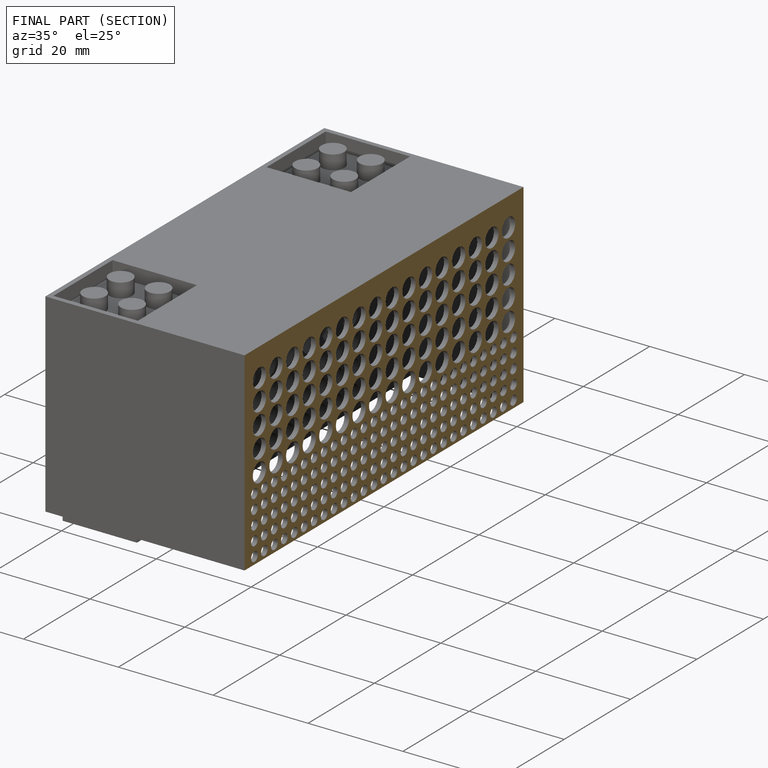
[diagram: finished part — half-section view (interior)]
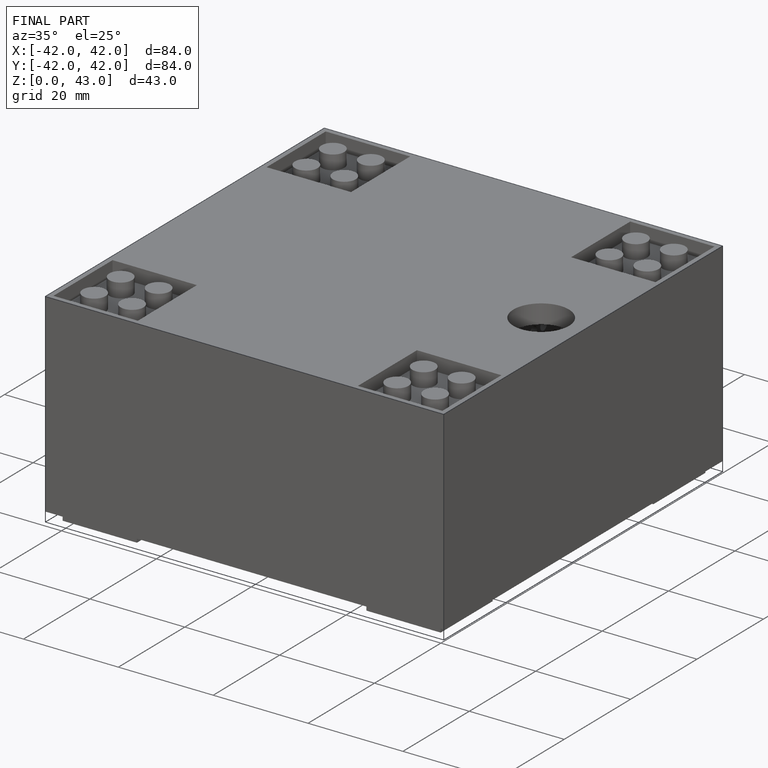
[diagram: finished part — iso view with bounding-box wireframe]
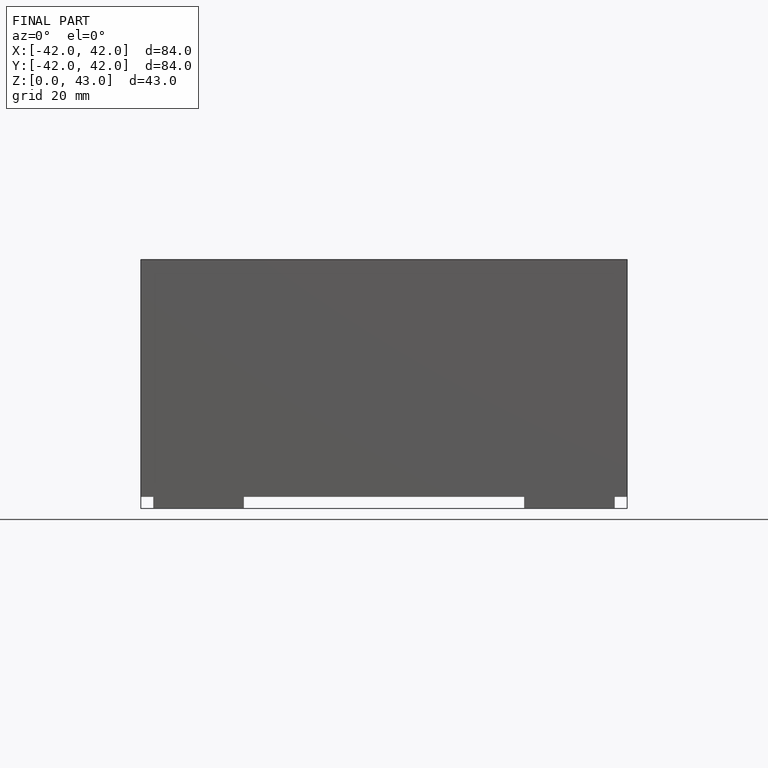
[diagram: finished part — front view with bounding-box wireframe]
